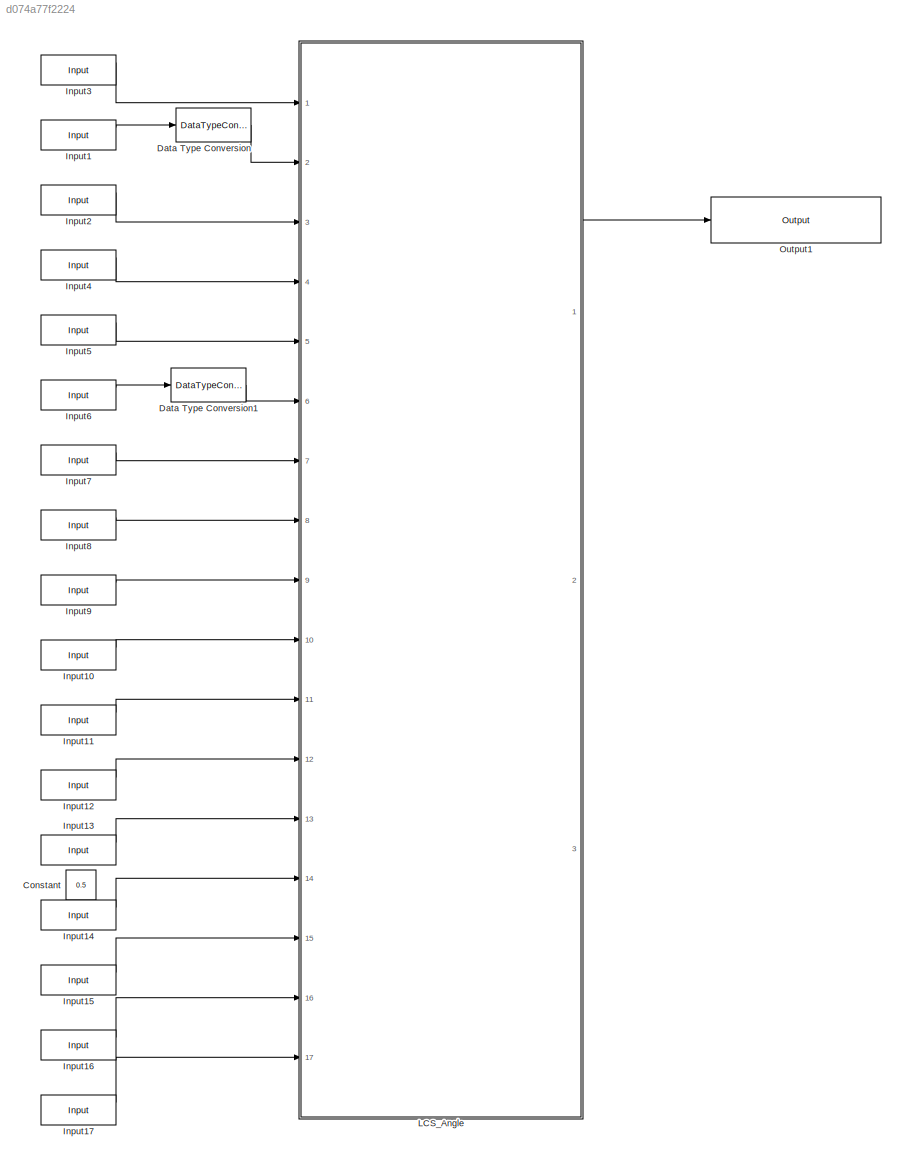
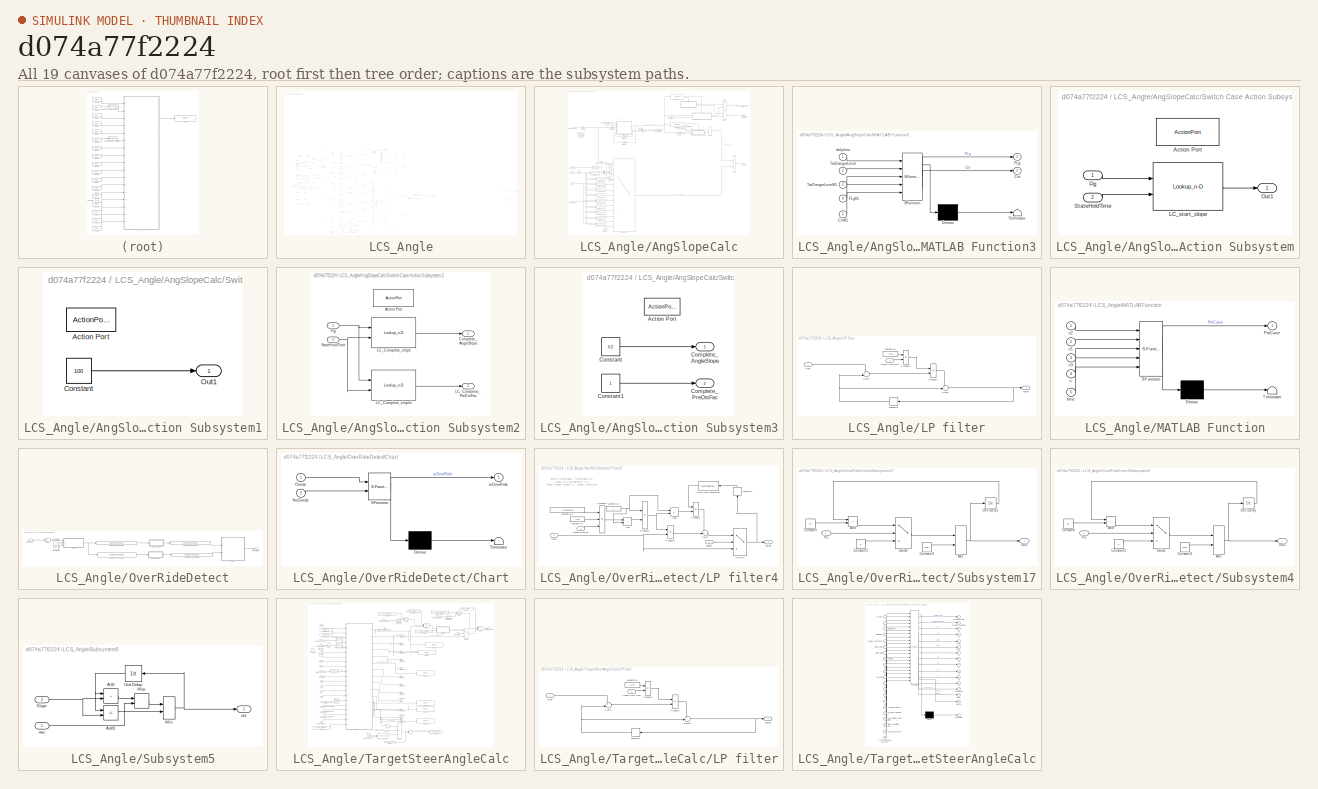
[diagram: thumbnail index - all 19 canvases of the model, root first then tree order]
MODEL slx_d074a77f2224
KIND model
CONFIG AbsTol = auto
CONFIG EnableMultiTasking = off
CONFIG FixedStep = 0.01
CONFIG MaxStep = auto
CONFIG MinStep = auto
CONFIG RelTol = 1e-3
CONFIG SampleTimeConstraint = Unconstrained
CONFIG SolverName = FixedStepDiscrete
CONFIG StartTime = 0.0
CONFIG StopTime = inf
BLOCK [Constant] Constant
  OutDataTypeStr = single
  Value = 0.5
BLOCK [DataTypeConversion] Data Type Conversion
  RndMeth = Floor
  SaturateOnIntegerOverflow = off
BLOCK [DataTypeConversion] Data Type Conversion1
  RndMeth = Floor
  SaturateOnIntegerOverflow = off
BLOCK [Reference] Input1  REF=canapelib/CANape I//O/Input
  AttributesFormatString = %<envName>
  Ports = [0, 3]
  SourceBlock = canapelib/CANape I//O/Input
  SourceProductName = Vector CANape/vSignalyzer Target
  SourceType = Input Module
BLOCK [Reference] Input10  REF=canapelib/CANape I//O/Input
  AttributesFormatString = %<envName>
  Ports = [0, 3]
  SourceBlock = canapelib/CANape I//O/Input
  SourceProductName = Vector CANape/vSignalyzer Target
  SourceType = Input Module
BLOCK [Reference] Input11  REF=canapelib/CANape I//O/Input
  AttributesFormatString = %<envName>
  Ports = [0, 3]
  SourceBlock = canapelib/CANape I//O/Input
  SourceProductName = Vector CANape/vSignalyzer Target
  SourceType = Input Module
BLOCK [Reference] Input12  REF=canapelib/CANape I//O/Input
  AttributesFormatString = %<envName>
  Ports = [0, 3]
  SourceBlock = canapelib/CANape I//O/Input
  SourceProductName = Vector CANape/vSignalyzer Target
  SourceType = Input Module
BLOCK [Reference] Input13  REF=canapelib/CANape I//O/Input
  AttributesFormatString = %<envName>
  Ports = [0, 3]
  SourceBlock = canapelib/CANape I//O/Input
  SourceProductName = Vector CANape/vSignalyzer Target
  SourceType = Input Module
BLOCK [Reference] Input14  REF=canapelib/CANape I//O/Input
  AttributesFormatString = %<envName>
  Ports = [0, 3]
  SourceBlock = canapelib/CANape I//O/Input
  SourceProductName = Vector CANape/vSignalyzer Target
  SourceType = Input Module
BLOCK [Reference] Input15  REF=canapelib/CANape I//O/Input
  AttributesFormatString = %<envName>
  Ports = [0, 3]
  SourceBlock = canapelib/CANape I//O/Input
  SourceProductName = Vector CANape/vSignalyzer Target
  SourceType = Input Module
BLOCK [Reference] Input16  REF=canapelib/CANape I//O/Input
  AttributesFormatString = %<envName>
  Ports = [0, 3]
  SourceBlock = canapelib/CANape I//O/Input
  SourceProductName = Vector CANape/vSignalyzer Target
  SourceType = Input Module
BLOCK [Reference] Input17  REF=canapelib/CANape I//O/Input
  AttributesFormatString = %<envName>
  Ports = [0, 3]
  SourceBlock = canapelib/CANape I//O/Input
  SourceProductName = Vector CANape/vSignalyzer Target
  SourceType = Input Module
BLOCK [Reference] Input2  REF=canapelib/CANape I//O/Input
  AttributesFormatString = %<envName>
  Ports = [0, 3]
  SourceBlock = canapelib/CANape I//O/Input
  SourceProductName = Vector CANape/vSignalyzer Target
  SourceType = Input Module
BLOCK [Reference] Input3  REF=canapelib/CANape I//O/Input
  AttributesFormatString = %<envName>
  Ports = [0, 3]
  SourceBlock = canapelib/CANape I//O/Input
  SourceProductName = Vector CANape/vSignalyzer Target
  SourceType = Input Module
BLOCK [Reference] Input4  REF=canapelib/CANape I//O/Input
  AttributesFormatString = %<envName>
  Ports = [0, 3]
  SourceBlock = canapelib/CANape I//O/Input
  SourceProductName = Vector CANape/vSignalyzer Target
  SourceType = Input Module
BLOCK [Reference] Input5  REF=canapelib/CANape I//O/Input
  AttributesFormatString = %<envName>
  Ports = [0, 3]
  SourceBlock = canapelib/CANape I//O/Input
  SourceProductName = Vector CANape/vSignalyzer Target
  SourceType = Input Module
BLOCK [Reference] Input6  REF=canapelib/CANape I//O/Input
  AttributesFormatString = %<envName>
  Ports = [0, 3]
  SourceBlock = canapelib/CANape I//O/Input
  SourceProductName = Vector CANape/vSignalyzer Target
  SourceType = Input Module
BLOCK [Reference] Input7  REF=canapelib/CANape I//O/Input
  AttributesFormatString = %<envName>
  Ports = [0, 3]
  SourceBlock = canapelib/CANape I//O/Input
  SourceProductName = Vector CANape/vSignalyzer Target
  SourceType = Input Module
BLOCK [Reference] Input8  REF=canapelib/CANape I//O/Input
  AttributesFormatString = %<envName>
  Ports = [0, 3]
  SourceBlock = canapelib/CANape I//O/Input
  SourceProductName = Vector CANape/vSignalyzer Target
  SourceType = Input Module
BLOCK [Reference] Input9  REF=canapelib/CANape I//O/Input
  AttributesFormatString = %<envName>
  Ports = [0, 3]
  SourceBlock = canapelib/CANape I//O/Input
  SourceProductName = Vector CANape/vSignalyzer Target
  SourceType = Input Module
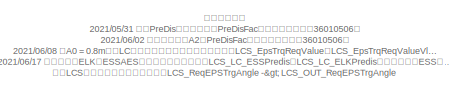
[diagram: LCS_Angle - part 1/9, top left region]
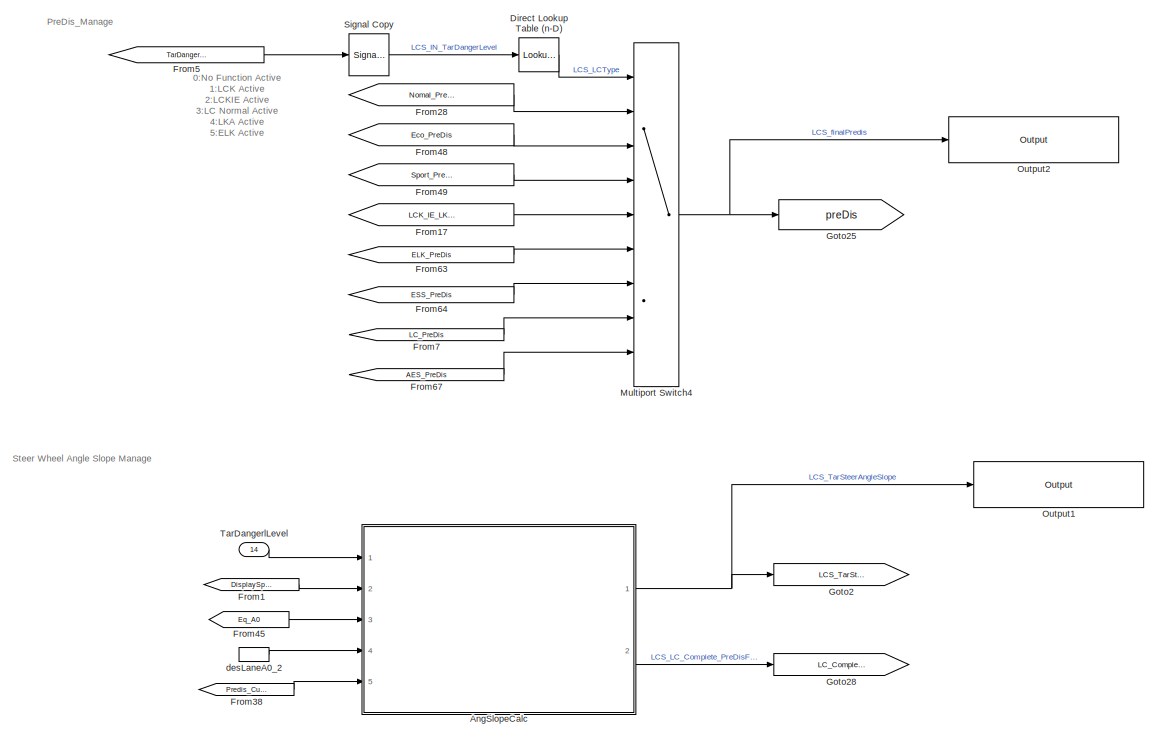
[diagram: LCS_Angle - part 2/9, central region]
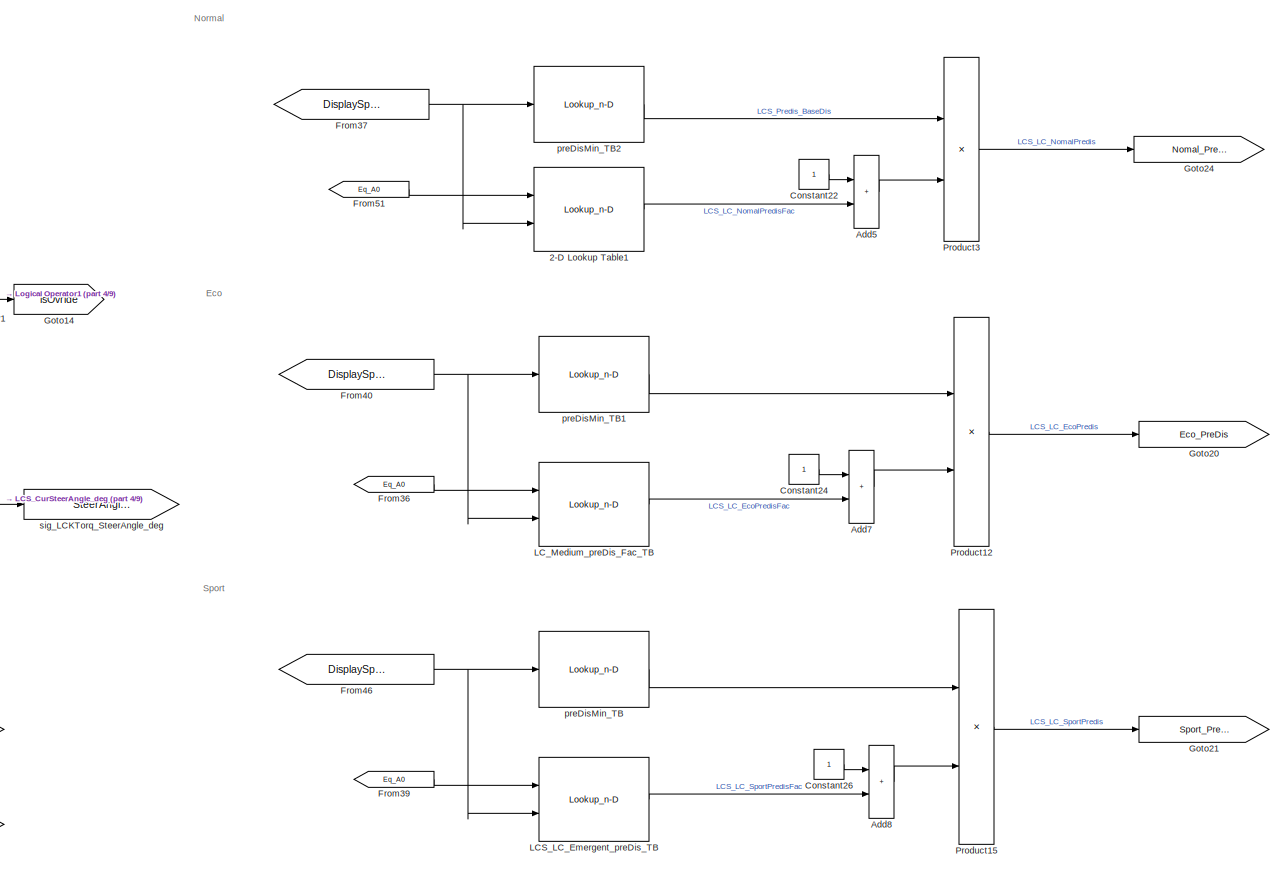
[diagram: LCS_Angle - part 3/9, middle left region]
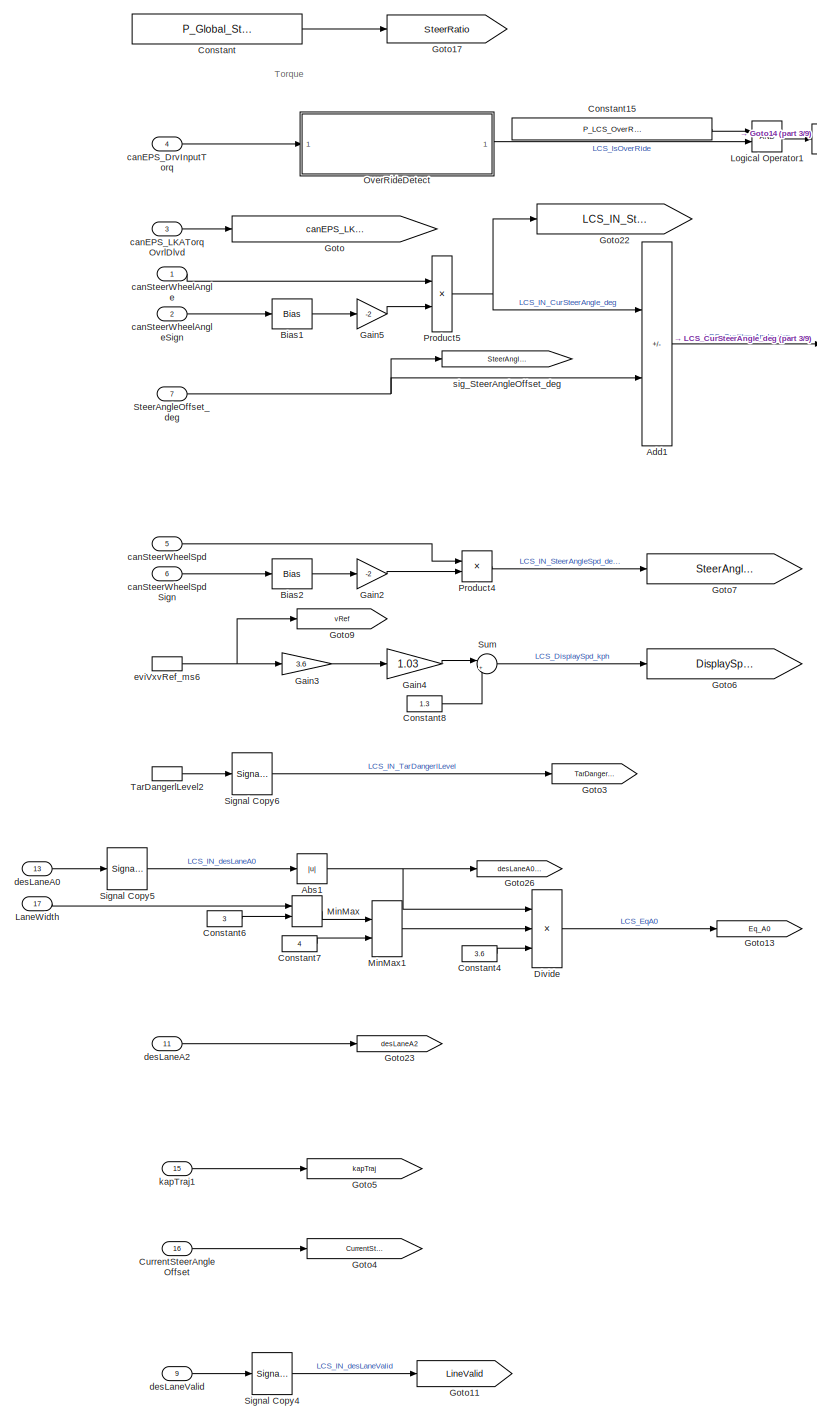
[diagram: LCS_Angle - part 4/9, middle left region]
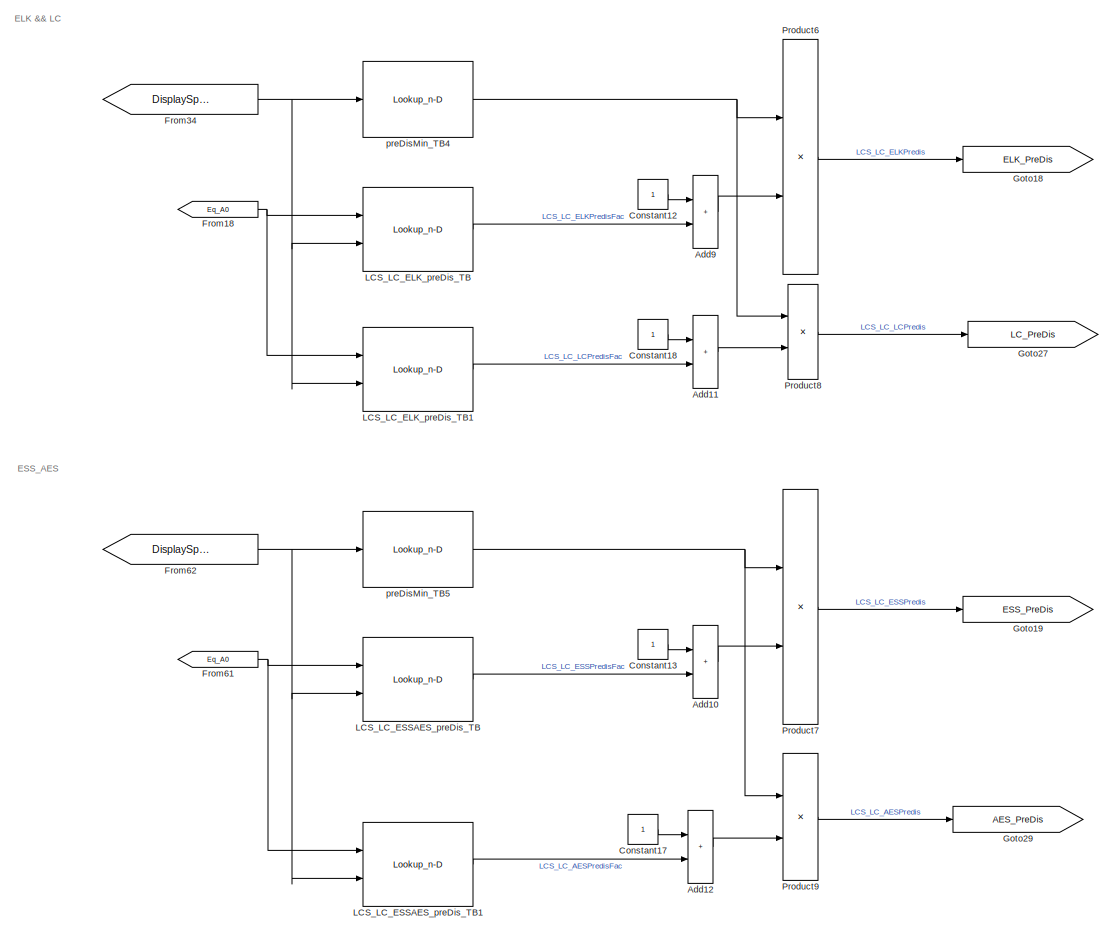
[diagram: LCS_Angle - part 5/9, bottom left region]
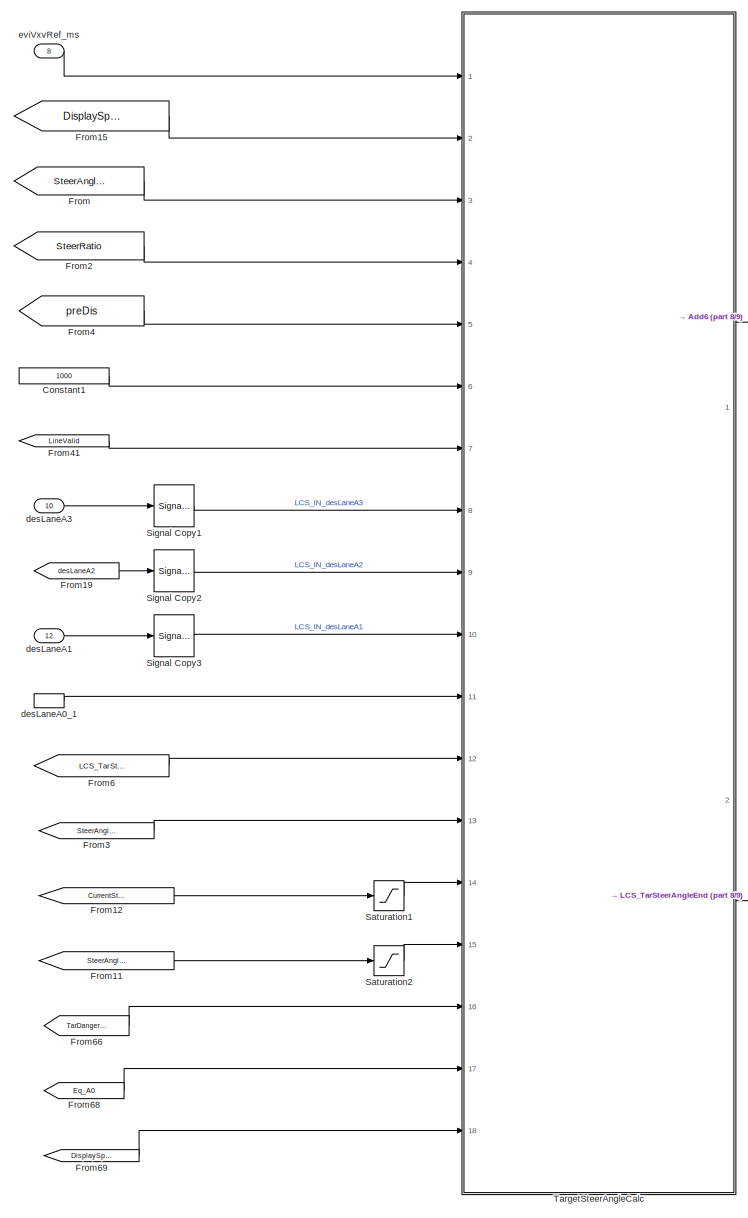
[diagram: LCS_Angle - part 6/9, bottom center region]
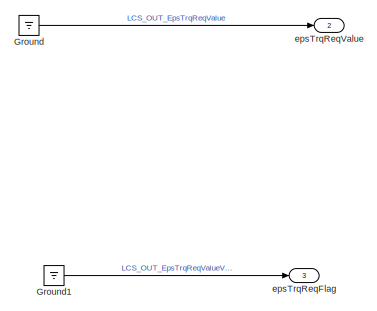
[diagram: LCS_Angle - part 7/9, bottom right region]
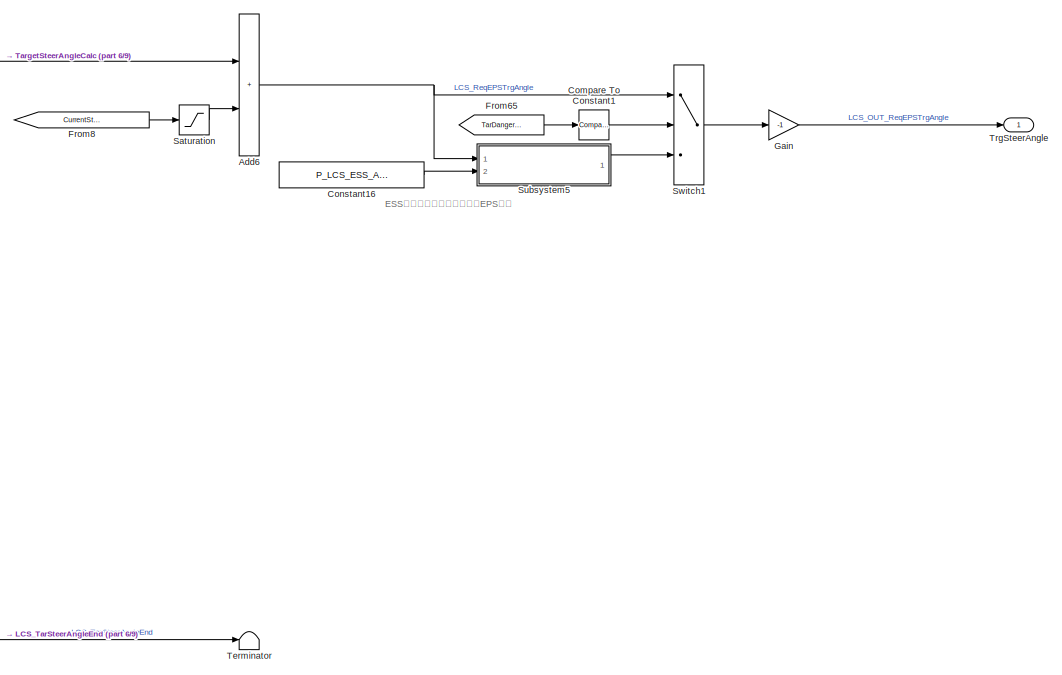
[diagram: LCS_Angle - part 8/9, bottom center region]
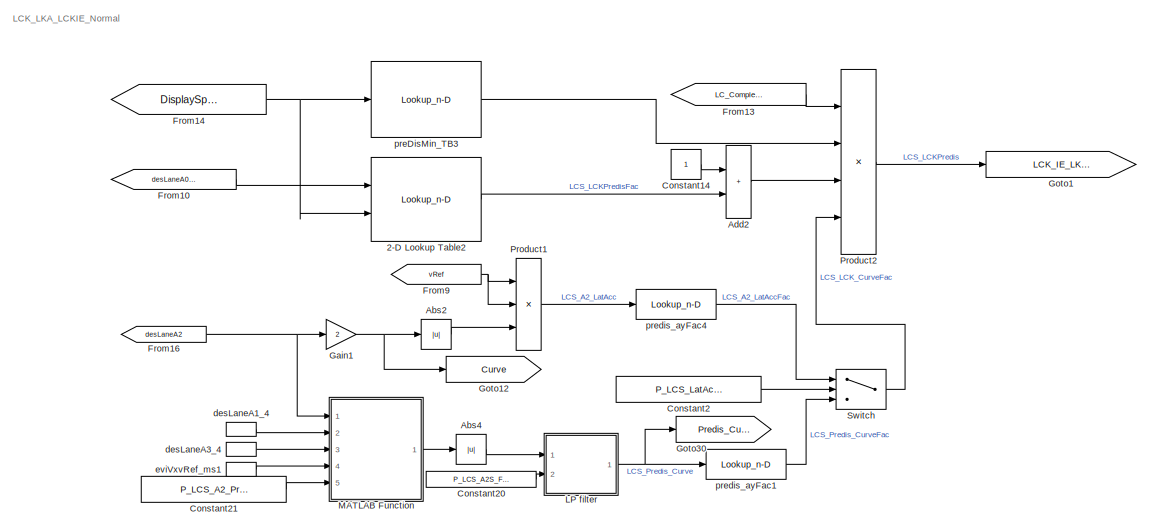
[diagram: LCS_Angle - part 9/9, bottom left region]
BLOCK [SubSystem] LCS_Angle
  Ports = [17, 3]
  RequestExecContextInheritance = off
BLOCK [Lookup_n-D] LCS_Angle/2-D Lookup Table1
  BreakpointsForDimension1 = P_LCS_A0_Dis_BP
  BreakpointsForDimension2 = P_LCS_preDis_spd
  ExtrapMethod = Clip
  InputPortMap = u0,u1
  InternalRulePriority = Speed
  Ports = [2, 1]
  RndMeth = Simplest
  Table = P_LCS_preDis_LC_Nomal_Fac
  UseLastTableValue = on
BLOCK [Lookup_n-D] LCS_Angle/2-D Lookup Table2
  BreakpointsForDimension1 = P_LCS_A0_Dis_BP
  BreakpointsForDimension2 = P_LCS_preDis_spd
  ExtrapMethod = Clip
  InputPortMap = u0,u1
  InternalRulePriority = Speed
  Ports = [2, 1]
  RndMeth = Simplest
  Table = P_LCS_preDis_LCK_Fac
  UseLastTableValue = on
BLOCK [Abs] LCS_Angle/Abs1
  SaturateOnIntegerOverflow = off
BLOCK [Abs] LCS_Angle/Abs2
  SaturateOnIntegerOverflow = off
BLOCK [Abs] LCS_Angle/Abs4
  SaturateOnIntegerOverflow = off
BLOCK [Sum] LCS_Angle/Add1
  IconShape = rectangular
  Inputs = +-
  Ports = [2, 1]
BLOCK [Sum] LCS_Angle/Add10
  IconShape = rectangular
  Ports = [2, 1]
BLOCK [Sum] LCS_Angle/Add11
  IconShape = rectangular
  Ports = [2, 1]
BLOCK [Sum] LCS_Angle/Add12
  IconShape = rectangular
  Ports = [2, 1]
BLOCK [Sum] LCS_Angle/Add2
  IconShape = rectangular
  Ports = [2, 1]
BLOCK [Sum] LCS_Angle/Add5
  IconShape = rectangular
  Ports = [2, 1]
BLOCK [Sum] LCS_Angle/Add6
  AccumDataTypeStr = single
  IconShape = rectangular
  Ports = [2, 1]
BLOCK [Sum] LCS_Angle/Add7
  IconShape = rectangular
  Ports = [2, 1]
BLOCK [Sum] LCS_Angle/Add8
  IconShape = rectangular
  Ports = [2, 1]
BLOCK [Sum] LCS_Angle/Add9
  IconShape = rectangular
  Ports = [2, 1]
BLOCK [SubSystem] LCS_Angle/AngSlopeCalc
  Ports = [5, 2]
  RequestExecContextInheritance = off
BLOCK [Abs] LCS_Angle/AngSlopeCalc/Abs1
  SaturateOnIntegerOverflow = off
BLOCK [Outport] LCS_Angle/AngSlopeCalc/AngSlope
  OutDataTypeStr = single
BLOCK [Constant] LCS_Angle/AngSlopeCalc/Constant
  OutDataTypeStr = single
  Value = 0.4
BLOCK [Constant] LCS_Angle/AngSlopeCalc/Constant2
  OutDataTypeStr = uint16
  Value = P_LCS_StateHold_time
BLOCK [Constant] LCS_Angle/AngSlopeCalc/Constant3
  Value = 0.02
BLOCK [Constant] LCS_Angle/AngSlopeCalc/Constant4
  OutDataTypeStr = single
  Value = 0.4
BLOCK [Lookup_n-D] LCS_Angle/AngSlopeCalc/ELK Active
  BreakpointsForDimension1 = P_LCS_A0_Dis_BP
  BreakpointsForDimension2 = P_LCS_AngleSlope_Spd_BP
  ExtrapMethod = Clip
  InputPortMap = u0,u1
  InputSameDT = off
  InternalRulePriority = Speed
  OutDataTypeStr = single
  Ports = [2, 1]
  RndMeth = Simplest
  Table = P_LCS_AngleSlope_ELK
  UseLastTableValue = on
BLOCK [Lookup_n-D] LCS_Angle/AngSlopeCalc/ESS AES Active
  BreakpointsForDimension1 = P_LCS_A0_Dis_BP
  BreakpointsForDimension2 = P_LCS_AngleSlope_Spd_BP
  ExtrapMethod = Clip
  InputPortMap = u0,u1
  InputSameDT = off
  InternalRulePriority = Speed
  OutDataTypeStr = single
  Ports = [2, 1]
  RndMeth = Simplest
  Table = P_LCS_AngleSlope_ESS
  UseLastTableValue = on
BLOCK [Inport] LCS_Angle/AngSlopeCalc/Eq_A0
  Port = 3
BLOCK [From] LCS_Angle/AngSlopeCalc/From
  GotoTag = LC_Complete_AngleSlope
BLOCK [From] LCS_Angle/AngSlopeCalc/From1
  GotoTag = HoldTime
BLOCK [From] LCS_Angle/AngSlopeCalc/From2
  GotoTag = HoldTime
BLOCK [Goto] LCS_Angle/AngSlopeCalc/Goto
  GotoTag = HoldTime
BLOCK [Goto] LCS_Angle/AngSlopeCalc/Goto1
  GotoTag = LC_Complete_AngleSlope
BLOCK [Lookup_n-D] LCS_Angle/AngSlopeCalc/LC Cancel
  BreakpointsForDimension1 = P_LCS_A0_Dis_BP
  BreakpointsForDimension2 = P_LCS_AngleSlope_Spd_BP
  ExtrapMethod = Clip
  InputPortMap = u0,u1
  InputSameDT = off
  InternalRulePriority = Speed
  OutDataTypeStr = single
  Ports = [2, 1]
  RndMeth = Simplest
  Table = P_LCS_AngleSlope_LC_Cancel
  UseLastTableValue = on
BLOCK [Lookup_n-D] LCS_Angle/AngSlopeCalc/LCK//IE TO LC_Eco
  BreakpointsForDimension1 = P_LCS_A0_Dis_BP
  BreakpointsForDimension2 = P_LCS_AngleSlope_Spd_BP
  ExtrapMethod = Clip
  InputPortMap = u0,u1
  InputSameDT = off
  InternalRulePriority = Speed
  OutDataTypeStr = single
  Ports = [2, 1]
  RndMeth = Simplest
  Table = P_LCS_AngleSlope_LC_Eco
  UseLastTableValue = on
BLOCK [Lookup_n-D] LCS_Angle/AngSlopeCalc/LCK//IE TO LC_Nomal
  BreakpointsForDimension1 = P_LCS_A0_Dis_BP
  BreakpointsForDimension2 = P_LCS_AngleSlope_Spd_BP
  ExtrapMethod = Clip
  InputPortMap = u0,u1
  InputSameDT = off
  InternalRulePriority = Speed
  OutDataTypeStr = single
  Ports = [2, 1]
  RndMeth = Simplest
  Table = P_LCS_AngleSlope_LC_Nomal
  UseLastTableValue = on
BLOCK [Lookup_n-D] LCS_Angle/AngSlopeCalc/LCK//IE TO LC_Sport
  BreakpointsForDimension1 = P_LCS_A0_Dis_BP
  BreakpointsForDimension2 = P_LCS_AngleSlope_Spd_BP
  ExtrapMethod = Clip
  InputPortMap = u0,u1
  InputSameDT = off
  InternalRulePriority = Speed
  OutDataTypeStr = single
  Ports = [2, 1]
  RndMeth = Simplest
  Table = P_LCS_AngleSlope_LC_Sport
  UseLastTableValue = on
BLOCK [Lookup_n-D] LCS_Angle/AngSlopeCalc/LCK//IE TO LC_Sport1
  BreakpointsForDimension1 = P_LCS_A0_Dis_BP
  BreakpointsForDimension2 = P_LCS_AngleSlope_Spd_BP
  ExtrapMethod = Clip
  InputPortMap = u0,u1
  InputSameDT = off
  InternalRulePriority = Speed
  OutDataTypeStr = single
  Ports = [2, 1]
  RndMeth = Simplest
  Table = P_LCS_AngleSlope_AES_Active
  UseLastTableValue = on
BLOCK [Lookup_n-D] LCS_Angle/AngSlopeCalc/LCKIE_Active
  BreakpointsForDimension1 = P_LCS_A0_Dis_BP
  BreakpointsForDimension2 = P_LCS_AngleSlope_Spd_BP
  ExtrapMethod = Clip
  InputPortMap = u0,u1
  InputSameDT = off
  InternalRulePriority = Speed
  OutDataTypeStr = single
  Ports = [2, 1]
  RndMeth = Simplest
  Table = P_LCS_AngleSlope_LCKIE
  UseLastTableValue = on
BLOCK [Lookup_n-D] LCS_Angle/AngSlopeCalc/LCK_A2_Fac
  BreakpointsForDimension1 = P_LCS_A2_Curve_BP
  ExtrapMethod = Clip
  InputPortMap = u0
  InternalRulePriority = Speed
  NumberOfTableDimensions = 1
  Ports = [1, 1]
  RndMeth = Simplest
  Table = P_LCS_AngleSlope_LCK_Curve_Fac
  UseLastTableValue = on
BLOCK [Outport] LCS_Angle/AngSlopeCalc/LC_Complete_PreDisFac
  OutDataTypeStr = single
  Port = 2
BLOCK [Lookup_n-D] LCS_Angle/AngSlopeCalc/LKA Active
  BreakpointsForDimension1 = P_LCS_A0_Dis_BP
  BreakpointsForDimension2 = P_LCS_AngleSlope_Spd_BP
  ExtrapMethod = Clip
  InputPortMap = u0,u1
  InputSameDT = off
  InternalRulePriority = Speed
  OutDataTypeStr = single
  Ports = [2, 1]
  RndMeth = Simplest
  Table = P_LCS_AngleSlope_LKA
  UseLastTableValue = on
BLOCK [SubSystem] LCS_Angle/AngSlopeCalc/MATLAB Function3
  ErrorFcn = Stateflow.Translate.translate
  PermitHierarchicalResolution = ExplicitOnly
  Ports = [5, 2]
  RequestExecContextInheritance = off
  SFBlockType = MATLAB Function
  TreatAsAtomicUnit = on
BLOCK [Demux] LCS_Angle/AngSlopeCalc/MATLAB Function3/ Demux 
  Outputs = 1
  Ports = [1, 1]
BLOCK [S-Function] LCS_Angle/AngSlopeCalc/MATLAB Function3/ SFunction 
  EnableBusSupport = on
  FunctionName = sf_sfun
  PortCounts = [5 3]
  Ports = [5, 3]
  SFcnIsStateOwnerBlock = off
  SFunctionDeploymentMode = off
  Tag = Stateflow S-Function 2
BLOCK [Terminator] LCS_Angle/AngSlopeCalc/MATLAB Function3/ Terminator 
BLOCK [Outport] LCS_Angle/AngSlopeCalc/MATLAB Function3/Cnt
  Port = 2
BLOCK [Inport] LCS_Angle/AngSlopeCalc/MATLAB Function3/CntK1
  Port = 5
BLOCK [Outport] LCS_Angle/AngSlopeCalc/MATLAB Function3/FLg
BLOCK [Inport] LCS_Angle/AngSlopeCalc/MATLAB Function3/FLgK1
  Port = 4
BLOCK [Inport] LCS_Angle/AngSlopeCalc/MATLAB Function3/TarDangerLevel
  Port = 2
BLOCK [Inport] LCS_Angle/AngSlopeCalc/MATLAB Function3/TarDangerLevelK1
  Port = 3
BLOCK [Inport] LCS_Angle/AngSlopeCalc/MATLAB Function3/delytime
BLOCK [MinMax] LCS_Angle/AngSlopeCalc/Max
  Function = max
  Inputs = 2
  Ports = [2, 1]
BLOCK [MinMax] LCS_Angle/AngSlopeCalc/Max1
  Function = max
  Inputs = 2
  Ports = [2, 1]
BLOCK [Merge] LCS_Angle/AngSlopeCalc/Merge
  Ports = [2, 1]
BLOCK [Merge] LCS_Angle/AngSlopeCalc/Merge1
  Ports = [2, 1]
BLOCK [Merge] LCS_Angle/AngSlopeCalc/Merge2
  Ports = [2, 1]
BLOCK [MinMax] LCS_Angle/AngSlopeCalc/Min
  Inputs = 2
  Ports = [2, 1]
BLOCK [MultiPortSwitch] LCS_Angle/AngSlopeCalc/Multiport Switch1
  DataPortOrder = Zero-based contiguous
  InputSameDT = off
  Inputs = 12
  Ports = [13, 1]
  SaturateOnIntegerOverflow = off
  zeroidx = on
BLOCK [Lookup_n-D] LCS_Angle/AngSlopeCalc/No Function 2 LCK
  BreakpointsForDimension1 = P_LCS_A0_Dis_BP
  BreakpointsForDimension2 = P_LCS_AngleSlope_Spd_BP
  ExtrapMethod = Clip
  InputPortMap = u0,u1
  InputSameDT = off
  InternalRulePriority = Speed
  OutDataTypeStr = single
  Ports = [2, 1]
  RndMeth = Simplest
  Table = P_LCS_AngleSlope_LCK
  UseLastTableValue = on
BLOCK [Inport] LCS_Angle/AngSlopeCalc/Predis_Curve
  Port = 5
BLOCK [Product] LCS_Angle/AngSlopeCalc/Product
  Ports = [2, 1]
BLOCK [Product] LCS_Angle/AngSlopeCalc/Product1
  Ports = [2, 1]
BLOCK [SwitchCase] LCS_Angle/AngSlopeCalc/Switch Case
  CaseConditions = {[1,2,3,4,5,6]}
  Ports = [1, 2]
BLOCK [SubSystem] LCS_Angle/AngSlopeCalc/Switch Case Action Subsystem
  Ports = [2, 1, 0, 0, 0, 0, 0, 1]
  RequestExecContextInheritance = off
  TreatAsAtomicUnit = on
BLOCK [ActionPort] LCS_Angle/AngSlopeCalc/Switch Case Action Subsystem/Action Port
  ActionPortLabel = case [ 1 2 3 4 5 6 ]:
BLOCK [Inport] LCS_Angle/AngSlopeCalc/Switch Case Action Subsystem/Flg
BLOCK [Lookup_n-D] LCS_Angle/AngSlopeCalc/Switch Case Action Subsystem/LC_start_slope
  BreakpointsForDimension1 = P_LCS_StateActiveFlg_BP
  BreakpointsForDimension2 = P_LCS_StateActive_HoldTime_BP
  ExtrapMethod = Clip
  InputPortMap = u0,u1
  InputSameDT = off
  InternalRulePriority = Speed
  OutDataTypeStr = single
  Ports = [2, 1]
  RndMeth = Simplest
  Table = P_LCS_StateActiv_AngleSlope
  UseLastTableValue = on
BLOCK [Outport] LCS_Angle/AngSlopeCalc/Switch Case Action Subsystem/Out1
BLOCK [Inport] LCS_Angle/AngSlopeCalc/Switch Case Action Subsystem/StateHoldTime
  Port = 2
BLOCK [SubSystem] LCS_Angle/AngSlopeCalc/Switch Case Action Subsystem1
  Ports = [0, 1, 0, 0, 0, 0, 0, 1]
  RequestExecContextInheritance = off
  TreatAsAtomicUnit = on
BLOCK [ActionPort] LCS_Angle/AngSlopeCalc/Switch Case Action Subsystem1/Action Port
  ActionPortLabel = default:
BLOCK [Constant] LCS_Angle/AngSlopeCalc/Switch Case Action Subsystem1/Constant
  OutDataTypeStr = single
  Value = 100
BLOCK [Outport] LCS_Angle/AngSlopeCalc/Switch Case Action Subsystem1/Out1
BLOCK [SubSystem] LCS_Angle/AngSlopeCalc/Switch Case Action Subsystem2
  Ports = [2, 2, 0, 0, 0, 0, 0, 1]
  RequestExecContextInheritance = off
  TreatAsAtomicUnit = on
BLOCK [ActionPort] LCS_Angle/AngSlopeCalc/Switch Case Action Subsystem2/Action Port
  ActionPortLabel = case [ 7 8 9 10 ]:
BLOCK [Outport] LCS_Angle/AngSlopeCalc/Switch Case Action Subsystem2/Complete_AngleSlope
BLOCK [Inport] LCS_Angle/AngSlopeCalc/Switch Case Action Subsystem2/Flg
BLOCK [Outport] LCS_Angle/AngSlopeCalc/Switch Case Action Subsystem2/LC_Complete_PreDisFac
  Port = 2
BLOCK [Lookup_n-D] LCS_Angle/AngSlopeCalc/Switch Case Action Subsystem2/LC_Complete_slope
  BreakpointsForDimension1 = P_LCS_StateCompleteFlg_BP
  BreakpointsForDimension2 = P_LCS_StateActive_HoldTime_BP
  ExtrapMethod = Clip
  InputPortMap = u0,u1
  InputSameDT = off
  InternalRulePriority = Speed
  OutDataTypeStr = single
  Ports = [2, 1]
  RndMeth = Simplest
  Table = P_LCS_StateComplete_AngleSlope
  UseLastTableValue = on
BLOCK [Lookup_n-D] LCS_Angle/AngSlopeCalc/Switch Case Action Subsystem2/LC_Complete_slope1
  BreakpointsForDimension1 = P_LCS_StateCompleteFlg_BP
  BreakpointsForDimension2 = P_LCS_StateActive_HoldTime_BP
  ExtrapMethod = Clip
  InputPortMap = u0,u1
  InputSameDT = off
  InternalRulePriority = Speed
  OutDataTypeStr = single
  Ports = [2, 1]
  RndMeth = Simplest
  Table = P_LCS_LC_Complete_PreDisFac
  UseLastTableValue = on
BLOCK [Inport] LCS_Angle/AngSlopeCalc/Switch Case Action Subsystem2/StateHoldTime
  Port = 2
BLOCK [SubSystem] LCS_Angle/AngSlopeCalc/Switch Case Action Subsystem3
  Ports = [0, 2, 0, 0, 0, 0, 0, 1]
  RequestExecContextInheritance = off
  TreatAsAtomicUnit = on
BLOCK [ActionPort] LCS_Angle/AngSlopeCalc/Switch Case Action Subsystem3/Action Port
  ActionPortLabel = default:
BLOCK [Outport] LCS_Angle/AngSlopeCalc/Switch Case Action Subsystem3/Complete_AngleSlope
BLOCK [Outport] LCS_Angle/AngSlopeCalc/Switch Case Action Subsystem3/Complete_PreDisFac
  Port = 2
BLOCK [Constant] LCS_Angle/AngSlopeCalc/Switch Case Action Subsystem3/Constant
  OutDataTypeStr = single
  Value = 0.2
BLOCK [Constant] LCS_Angle/AngSlopeCalc/Switch Case Action Subsystem3/Constant1
  OutDataTypeStr = single
BLOCK [SwitchCase] LCS_Angle/AngSlopeCalc/Switch Case1
  CaseConditions = {[7,8,9,10]}
  Ports = [1, 2]
BLOCK [Inport] LCS_Angle/AngSlopeCalc/TarDangerlLevel
BLOCK [UnitDelay] LCS_Angle/AngSlopeCalc/Unit Delay3
  HasFrameUpgradeWarning = on
  NameLocation = top
  SampleTime = -1
BLOCK [UnitDelay] LCS_Angle/AngSlopeCalc/Unit Delay4
  HasFrameUpgradeWarning = on
  NameLocation = top
  SampleTime = -1
BLOCK [UnitDelay] LCS_Angle/AngSlopeCalc/Unit Delay5
  HasFrameUpgradeWarning = on
  SampleTime = -1
BLOCK [UnitDelay] LCS_Angle/AngSlopeCalc/Unit Delay9
  HasFrameUpgradeWarning = on
  SampleTime = -1
BLOCK [Inport] LCS_Angle/AngSlopeCalc/desLane_A0
  Port = 4
BLOCK [Inport] LCS_Angle/AngSlopeCalc/vDisplay_Kph
  Port = 2
BLOCK [Bias] LCS_Angle/Bias1
  Bias = -0.5
  SaturateOnIntegerOverflow = off
BLOCK [Bias] LCS_Angle/Bias2
  Bias = -0.5
  SaturateOnIntegerOverflow = off
BLOCK [Reference] LCS_Angle/Compare To Constant1  REF=simulink/Logic and Bit
Operations/Compare
To Constant
  Ports = [1, 1]
  SourceBlock = simulink/Logic and Bit\nOperations/Compare\nTo Constant
  SourceProductBaseCode = SL
  SourceType = Compare To Constant
BLOCK [Constant] LCS_Angle/Constant
  OutDataTypeStr = double
  Value = P_Global_SteeringAngleRatio
BLOCK [Constant] LCS_Angle/Constant1
  OutDataTypeStr = single
  Value = 1000
BLOCK [Constant] LCS_Angle/Constant12
  OutDataTypeStr = single
BLOCK [Constant] LCS_Angle/Constant13
  OutDataTypeStr = single
BLOCK [Constant] LCS_Angle/Constant14
  OutDataTypeStr = single
BLOCK [Constant] LCS_Angle/Constant15
  Value = P_LCS_OverRideDetect_enable
BLOCK [Constant] LCS_Angle/Constant16
  OutDataTypeStr = single
  Value = P_LCS_ESS_AngleSlope_Limit
BLOCK [Constant] LCS_Angle/Constant17
  OutDataTypeStr = single
BLOCK [Constant] LCS_Angle/Constant18
  OutDataTypeStr = single
BLOCK [Constant] LCS_Angle/Constant2
  Value = P_LCS_LatAcc2CurveSW
BLOCK [Constant] LCS_Angle/Constant20
  Value = P_LCS_A2S_FliterTime
BLOCK [Constant] LCS_Angle/Constant21
  OutDataTypeStr = single
  Value = P_LCS_A2_Pretime
BLOCK [Constant] LCS_Angle/Constant22
  OutDataTypeStr = single
BLOCK [Constant] LCS_Angle/Constant24
  OutDataTypeStr = single
BLOCK [Constant] LCS_Angle/Constant26
  OutDataTypeStr = single
BLOCK [Constant] LCS_Angle/Constant4
  OutDataTypeStr = single
  Value = 3.6
BLOCK [Constant] LCS_Angle/Constant6
  OutDataTypeStr = single
  Value = 3
BLOCK [Constant] LCS_Angle/Constant7
  OutDataTypeStr = single
  Value = 4
BLOCK [Constant] LCS_Angle/Constant8
  OutDataTypeStr = single
  Value = 1.3
BLOCK [Inport] LCS_Angle/CurrentSteerAngleOffset
  Port = 16
BLOCK [LookupNDDirect] LCS_Angle/Direct Lookup Table (n-D)
  NumberOfTableDimensions = 1
  Ports = [1, 1]
  Table = [4 4 4 1 4 5 6 2 3 7 8]
  TableDataTypeStr = uint8
BLOCK [Product] LCS_Angle/Divide
  Inputs = **/
  Ports = [3, 1]
BLOCK [From] LCS_Angle/From
  GotoTag = SteerAngle_deg
BLOCK [From] LCS_Angle/From1
  GotoTag = DisplaySpd_kph
BLOCK [From] LCS_Angle/From10
  GotoTag = desLaneA0_abs
BLOCK [From] LCS_Angle/From11
  GotoTag = SteerAngleOffset_deg
BLOCK [From] LCS_Angle/From12
  GotoTag = CurrentSteerAngleOffset
BLOCK [From] LCS_Angle/From13
  GotoTag = LC_Complete_PreDisFac
BLOCK [From] LCS_Angle/From14
  GotoTag = DisplaySpd_kph
BLOCK [From] LCS_Angle/From15
  GotoTag = DisplaySpd_kph
BLOCK [From] LCS_Angle/From16
  GotoTag = desLaneA2
BLOCK [From] LCS_Angle/From17
  GotoTag = LCK_IE_LKA_Nomal_PreDis
BLOCK [From] LCS_Angle/From18
  GotoTag = Eq_A0
BLOCK [From] LCS_Angle/From19
  GotoTag = desLaneA2
BLOCK [From] LCS_Angle/From2
  GotoTag = SteerRatio
BLOCK [From] LCS_Angle/From28
  GotoTag = Nomal_PreDis
BLOCK [From] LCS_Angle/From3
  GotoTag = SteerAngleSpd_degs
BLOCK [From] LCS_Angle/From34
  GotoTag = DisplaySpd_kph
BLOCK [From] LCS_Angle/From36
  GotoTag = Eq_A0
BLOCK [From] LCS_Angle/From37
  GotoTag = DisplaySpd_kph
BLOCK [From] LCS_Angle/From38
  GotoTag = Predis_Curve
BLOCK [From] LCS_Angle/From39
  GotoTag = Eq_A0
BLOCK [From] LCS_Angle/From4
  GotoTag = preDis
BLOCK [From] LCS_Angle/From40
  GotoTag = DisplaySpd_kph
BLOCK [From] LCS_Angle/From41
  GotoTag = LineValid
BLOCK [From] LCS_Angle/From45
  GotoTag = Eq_A0
BLOCK [From] LCS_Angle/From46
  GotoTag = DisplaySpd_kph
BLOCK [From] LCS_Angle/From48
  GotoTag = Eco_PreDis
BLOCK [From] LCS_Angle/From49
  GotoTag = Sport_PreDis
BLOCK [From] LCS_Angle/From5
  GotoTag = TarDangerlLevel
BLOCK [From] LCS_Angle/From51
  GotoTag = Eq_A0
BLOCK [From] LCS_Angle/From6
  GotoTag = LCS_TarSteerAngleSlope
BLOCK [From] LCS_Angle/From61
  GotoTag = Eq_A0
BLOCK [From] LCS_Angle/From62
  GotoTag = DisplaySpd_kph
BLOCK [From] LCS_Angle/From63
  GotoTag = ELK_PreDis
BLOCK [From] LCS_Angle/From64
  GotoTag = ESS_PreDis
BLOCK [From] LCS_Angle/From65
  GotoTag = TarDangerlLevel
BLOCK [From] LCS_Angle/From66
  GotoTag = TarDangerlLevel
BLOCK [From] LCS_Angle/From67
  GotoTag = AES_PreDis
BLOCK [From] LCS_Angle/From68
  GotoTag = Eq_A0
BLOCK [From] LCS_Angle/From69
  GotoTag = DisplaySpd_kph
BLOCK [From] LCS_Angle/From7
  GotoTag = LC_PreDis
BLOCK [From] LCS_Angle/From8
  GotoTag = CurrentSteerAngleOffset
BLOCK [From] LCS_Angle/From9
  GotoTag = vRef
BLOCK [Gain] LCS_Angle/Gain
  Gain = -1
BLOCK [Gain] LCS_Angle/Gain1
  Gain = 2
BLOCK [Gain] LCS_Angle/Gain2
  Gain = -2
  OutDataTypeStr = single
BLOCK [Gain] LCS_Angle/Gain3
  Gain = 3.6
BLOCK [Gain] LCS_Angle/Gain4
  Gain = 1.03
BLOCK [Gain] LCS_Angle/Gain5
  Gain = -2
  OutDataTypeStr = single
BLOCK [Goto] LCS_Angle/Goto
  GotoTag = canEPS_LKATorqOvrlDlvd
BLOCK [Goto] LCS_Angle/Goto1
  GotoTag = LCK_IE_LKA_Nomal_PreDis
BLOCK [Goto] LCS_Angle/Goto11
  GotoTag = LineValid
BLOCK [Goto] LCS_Angle/Goto12
  GotoTag = Curve
BLOCK [Goto] LCS_Angle/Goto13
  GotoTag = Eq_A0
BLOCK [Goto] LCS_Angle/Goto14
  GotoTag = isOvride
BLOCK [Goto] LCS_Angle/Goto17
  GotoTag = SteerRatio
BLOCK [Goto] LCS_Angle/Goto18
  GotoTag = ELK_PreDis
BLOCK [Goto] LCS_Angle/Goto19
  GotoTag = ESS_PreDis
BLOCK [Goto] LCS_Angle/Goto2
  GotoTag = LCS_TarSteerAngleSlope
BLOCK [Goto] LCS_Angle/Goto20
  GotoTag = Eco_PreDis
BLOCK [Goto] LCS_Angle/Goto21
  GotoTag = Sport_PreDis
BLOCK [Goto] LCS_Angle/Goto22
  GotoTag = LCS_IN_SteerAngle_deg
BLOCK [Goto] LCS_Angle/Goto23
  GotoTag = desLaneA2
BLOCK [Goto] LCS_Angle/Goto24
  GotoTag = Nomal_PreDis
BLOCK [Goto] LCS_Angle/Goto25
  GotoTag = preDis
BLOCK [Goto] LCS_Angle/Goto26
  GotoTag = desLaneA0_abs
BLOCK [Goto] LCS_Angle/Goto27
  GotoTag = LC_PreDis
BLOCK [Goto] LCS_Angle/Goto28
  GotoTag = LC_Complete_PreDisFac
BLOCK [Goto] LCS_Angle/Goto29
  GotoTag = AES_PreDis
BLOCK [Goto] LCS_Angle/Goto3
  GotoTag = TarDangerlLevel
BLOCK [Goto] LCS_Angle/Goto30
  GotoTag = Predis_Curve
BLOCK [Goto] LCS_Angle/Goto4
  GotoTag = CurrentSteerAngleOffset
BLOCK [Goto] LCS_Angle/Goto5
  GotoTag = kapTraj
BLOCK [Goto] LCS_Angle/Goto6
  GotoTag = DisplaySpd_kph
BLOCK [Goto] LCS_Angle/Goto7
  GotoTag = SteerAngleSpd_degs
BLOCK [Goto] LCS_Angle/Goto9
  GotoTag = vRef
BLOCK [Ground] LCS_Angle/Ground
BLOCK [Ground] LCS_Angle/Ground1
BLOCK [Lookup_n-D] LCS_Angle/LCS_LC_ELK_preDis_TB
  BreakpointsForDimension1 = P_LCS_A0_Dis_BP
  BreakpointsForDimension2 = P_LCS_preDis_spd
  ExtrapMethod = Clip
  InputPortMap = u0,u1
  InternalRulePriority = Speed
  Ports = [2, 1]
  RndMeth = Simplest
  Table = P_LCS_preDis_ELK_Fac
  UseLastTableValue = on
BLOCK [Lookup_n-D] LCS_Angle/LCS_LC_ELK_preDis_TB1
  BreakpointsForDimension1 = P_LCS_A0_Dis_BP
  BreakpointsForDimension2 = P_LCS_preDis_spd
  ExtrapMethod = Clip
  InputPortMap = u0,u1
  InternalRulePriority = Speed
  Ports = [2, 1]
  RndMeth = Simplest
  Table = P_LCS_preDis_LC_Fac
  UseLastTableValue = on
BLOCK [Lookup_n-D] LCS_Angle/LCS_LC_ESSAES_preDis_TB
  BreakpointsForDimension1 = P_LCS_A0_Dis_BP
  BreakpointsForDimension2 = P_LCS_preDis_spd
  ExtrapMethod = Clip
  InputPortMap = u0,u1
  InternalRulePriority = Speed
  Ports = [2, 1]
  RndMeth = Simplest
  Table = P_LCS_preDis_ESS_Fac
  UseLastTableValue = on
BLOCK [Lookup_n-D] LCS_Angle/LCS_LC_ESSAES_preDis_TB1
  BreakpointsForDimension1 = P_LCS_A0_Dis_BP
  BreakpointsForDimension2 = P_LCS_preDis_spd
  ExtrapMethod = Clip
  InputPortMap = u0,u1
  InternalRulePriority = Speed
  Ports = [2, 1]
  RndMeth = Simplest
  Table = P_LCS_preDis_AES_Fac
  UseLastTableValue = on
BLOCK [Lookup_n-D] LCS_Angle/LCS_LC_Emergent_preDis_TB
  BreakpointsForDimension1 = P_LCS_A0_Dis_BP
  BreakpointsForDimension2 = P_LCS_preDis_spd
  ExtrapMethod = Clip
  InputPortMap = u0,u1
  InternalRulePriority = Speed
  Ports = [2, 1]
  RndMeth = Simplest
  Table = P_LCS_preDis_LC_Sport_Fac
  UseLastTableValue = on
BLOCK [Lookup_n-D] LCS_Angle/LC_Medium_preDis_Fac_TB
  BreakpointsForDimension1 = P_LCS_A0_Dis_BP
  BreakpointsForDimension2 = P_LCS_preDis_spd
  ExtrapMethod = Clip
  InputPortMap = u0,u1
  InternalRulePriority = Speed
  Ports = [2, 1]
  RndMeth = Simplest
  Table = P_LCS_preDis_LC_Eco_Fac
  UseLastTableValue = on
BLOCK [SubSystem] LCS_Angle/LP filter
  Ports = [2, 1]
  RequestExecContextInheritance = off
BLOCK [Memory] LCS_Angle/LP filter/Memory2
  InheritSampleTime = on
  NameLocation = top
BLOCK [Product] LCS_Angle/LP filter/Product1
  Ports = [2, 1]
  RndMeth = Zero
BLOCK [Product] LCS_Angle/LP filter/Product4
  Inputs = */
  Ports = [2, 1]
  RndMeth = Zero
BLOCK [Inport] LCS_Angle/LP filter/Raw
BLOCK [Sum] LCS_Angle/LP filter/Sum4
  Inputs = +-|
  Ports = [2, 1]
BLOCK [Sum] LCS_Angle/LP filter/Sum5
  Inputs = ++|
  Ports = [2, 1]
BLOCK [Inport] LCS_Angle/LP filter/TorqFilterTime
  Port = 2
BLOCK [Constant] LCS_Angle/LP filter/Weight//N3
  OutDataTypeStr = single
  Value = 0.02
BLOCK [Outport] LCS_Angle/LP filter/output
BLOCK [Inport] LCS_Angle/LaneWidth
  Port = 17
BLOCK [Logic] LCS_Angle/Logical Operator1
  AllPortsSameDT = off
  OutDataTypeStr = boolean
  Ports = [2, 1]
BLOCK [SubSystem] LCS_Angle/MATLAB Function
  ErrorFcn = Stateflow.Translate.translate
  PermitHierarchicalResolution = ExplicitOnly
  Ports = [5, 1]
  RequestExecContextInheritance = off
  SFBlockType = MATLAB Function
  TreatAsAtomicUnit = on
BLOCK [Demux] LCS_Angle/MATLAB Function/ Demux 
  Outputs = 1
  Ports = [1, 1]
BLOCK [S-Function] LCS_Angle/MATLAB Function/ SFunction 
  EnableBusSupport = on
  FunctionName = sf_sfun
  PortCounts = [5 2]
  Ports = [5, 2]
  SFcnIsStateOwnerBlock = off
  SFunctionDeploymentMode = off
  Tag = Stateflow S-Function 3
BLOCK [Terminator] LCS_Angle/MATLAB Function/ Terminator 
BLOCK [Outport] LCS_Angle/MATLAB Function/PreCurve
BLOCK [Inport] LCS_Angle/MATLAB Function/c1
  Port = 2
BLOCK [Inport] LCS_Angle/MATLAB Function/c2
BLOCK [Inport] LCS_Angle/MATLAB Function/c3
  Port = 3
BLOCK [Inport] LCS_Angle/MATLAB Function/time
  Port = 5
BLOCK [Inport] LCS_Angle/MATLAB Function/v
  Port = 4
BLOCK [MinMax] LCS_Angle/MinMax
  Function = max
  Inputs = 2
  Ports = [2, 1]
BLOCK [MinMax] LCS_Angle/MinMax1
  Inputs = 2
  Ports = [2, 1]
BLOCK [MultiPortSwitch] LCS_Angle/Multiport Switch4
  InputSameDT = off
  Inputs = 8
  Ports = [9, 1]
  SaturateOnIntegerOverflow = off
BLOCK [Reference] LCS_Angle/Output1  REF=canapelib/CANape I//O/Output
  AttributesFormatString = %<envName>
  Ports = [1]
  SourceBlock = canapelib/CANape I//O/Output
  SourceProductName = Vector CANape/vSignalyzer Target
  SourceType = Output Module
BLOCK [Reference] LCS_Angle/Output2  REF=canapelib/CANape I//O/Output
  AttributesFormatString = %<envName>
  Ports = [1]
  SourceBlock = canapelib/CANape I//O/Output
  SourceProductName = Vector CANape/vSignalyzer Target
  SourceType = Output Module
BLOCK [SubSystem] LCS_Angle/OverRideDetect
  Ports = [1, 1]
  RequestExecContextInheritance = off
BLOCK [Abs] LCS_Angle/OverRideDetect/Abs4
  SaturateOnIntegerOverflow = off
BLOCK [SubSystem] LCS_Angle/OverRideDetect/Chart
  ErrorFcn = Stateflow.Translate.translate
  PermitHierarchicalResolution = ExplicitOnly
  Ports = [2, 1]
  RequestExecContextInheritance = off
  SFBlockType = Chart
  TreatAsAtomicUnit = on
BLOCK [Demux] LCS_Angle/OverRideDetect/Chart/ Demux 
  Outputs = 1
  Ports = [1, 1]
BLOCK [S-Function] LCS_Angle/OverRideDetect/Chart/ SFunction 
  EnableBusSupport = on
  FunctionName = sf_sfun
  PortCounts = [2 2]
  Ports = [2, 2]
  SFcnIsStateOwnerBlock = off
  SFunctionDeploymentMode = off
  Tag = Stateflow S-Function 4
BLOCK [Terminator] LCS_Angle/OverRideDetect/Chart/ Terminator 
BLOCK [Inport] LCS_Angle/OverRideDetect/Chart/NoOvride
  Port = 2
BLOCK [Inport] LCS_Angle/OverRideDetect/Chart/Ovride
BLOCK [Outport] LCS_Angle/OverRideDetect/Chart/isOverRide
BLOCK [Reference] LCS_Angle/OverRideDetect/Compare To Constant1  REF=simulink/Logic and Bit
Operations/Compare
To Constant
  Ports = [1, 1]
  SourceBlock = simulink/Logic and Bit\nOperations/Compare\nTo Constant
  SourceProductBaseCode = SL
  SourceType = Compare To Constant
BLOCK [Reference] LCS_Angle/OverRideDetect/Compare To Constant2  REF=simulink/Logic and Bit
Operations/Compare
To Constant
  Ports = [1, 1]
  SourceBlock = simulink/Logic and Bit\nOperations/Compare\nTo Constant
  SourceProductBaseCode = SL
  SourceType = Compare To Constant
BLOCK [Reference] LCS_Angle/OverRideDetect/Compare To Constant3  REF=simulink/Logic and Bit
Operations/Compare
To Constant
  Ports = [1, 1]
  SourceBlock = simulink/Logic and Bit\nOperations/Compare\nTo Constant
  SourceProductBaseCode = SL
  SourceType = Compare To Constant
BLOCK [Reference] LCS_Angle/OverRideDetect/Compare To Constant4  REF=simulink/Logic and Bit
Operations/Compare
To Constant
  Ports = [1, 1]
  SourceBlock = simulink/Logic and Bit\nOperations/Compare\nTo Constant
  SourceProductBaseCode = SL
  SourceType = Compare To Constant
BLOCK [Constant] LCS_Angle/OverRideDetect/Constant12
  Value = 0.8
BLOCK [Constant] LCS_Angle/OverRideDetect/Constant13
  Value = true
BLOCK [Inport] LCS_Angle/OverRideDetect/DrvTrqInput
BLOCK [SubSystem] LCS_Angle/OverRideDetect/LP filter4
  Ports = [3, 1]
  RequestExecContextInheritance = off
BLOCK [Sum] LCS_Angle/OverRideDetect/LP filter4/Add
  IconShape = rectangular
  Ports = [2, 1]
BLOCK [Sum] LCS_Angle/OverRideDetect/LP filter4/Add1
  IconShape = rectangular
  Inputs = +-
  Ports = [2, 1]
BLOCK [DataTypeConversion] LCS_Angle/OverRideDetect/LP filter4/Data Type Conversion
  OutDataTypeStr = single
  RndMeth = Floor
  SaturateOnIntegerOverflow = off
BLOCK [Memory] LCS_Angle/OverRideDetect/LP filter4/Memory2
  InheritSampleTime = on
  NameLocation = right
BLOCK [Product] LCS_Angle/OverRideDetect/LP filter4/Product2
  Inputs = */
  Ports = [2, 1]
  RndMeth = Zero
BLOCK [Product] LCS_Angle/OverRideDetect/LP filter4/Product3
  Ports = [2, 1]
  RndMeth = Zero
BLOCK [Product] LCS_Angle/OverRideDetect/LP filter4/Product4
  Inputs = *//
  Ports = [3, 1]
  RndMeth = Zero
BLOCK [Product] LCS_Angle/OverRideDetect/LP filter4/Product5
  Ports = [2, 1]
  RndMeth = Zero
BLOCK [Inport] LCS_Angle/OverRideDetect/LP filter4/Raw
BLOCK [Sum] LCS_Angle/OverRideDetect/LP filter4/Sum1
  Inputs = ++|
  Ports = [2, 1]
BLOCK [Switch] LCS_Angle/OverRideDetect/LP filter4/Switch1
  Criteria = u2 ~= 0
  InputSameDT = off
  SaturateOnIntegerOverflow = off
BLOCK [Inport] LCS_Angle/OverRideDetect/LP filter4/TorqFilterTime
  Port = 2
BLOCK [Constant] LCS_Angle/OverRideDetect/LP filter4/Weight//N1
  OutDataTypeStr = single
  Value = 0.1591549431
BLOCK [Constant] LCS_Angle/OverRideDetect/LP filter4/Weight//N2
  OutDataTypeStr = single
BLOCK [Constant] LCS_Angle/OverRideDetect/LP filter4/Weight//N3
  OutDataTypeStr = single
  Value = 0.02
BLOCK [Inport] LCS_Angle/OverRideDetect/LP filter4/enable
  Port = 3
BLOCK [Outport] LCS_Angle/OverRideDetect/LP filter4/output
BLOCK [SubSystem] LCS_Angle/OverRideDetect/Subsystem17
  Ports = [1, 1]
  RequestExecContextInheritance = off
BLOCK [Sum] LCS_Angle/OverRideDetect/Subsystem17/Add
  IconShape = rectangular
  Ports = [2, 1]
BLOCK [Constant] LCS_Angle/OverRideDetect/Subsystem17/Constant
  Value = Ts
BLOCK [Constant] LCS_Angle/OverRideDetect/Subsystem17/Constant1
  Value = 0
BLOCK [Constant] LCS_Angle/OverRideDetect/Subsystem17/Constant2
  Value = Max
BLOCK [Inport] LCS_Angle/OverRideDetect/Subsystem17/In1
BLOCK [MinMax] LCS_Angle/OverRideDetect/Subsystem17/Max
  Inputs = 2
  Ports = [2, 1]
BLOCK [Outport] LCS_Angle/OverRideDetect/Subsystem17/Out1
BLOCK [Switch] LCS_Angle/OverRideDetect/Subsystem17/Switch
  Criteria = u2 ~= 0
  InputSameDT = off
  SaturateOnIntegerOverflow = off
BLOCK [UnitDelay] LCS_Angle/OverRideDetect/Subsystem17/Unit Delay
  HasFrameUpgradeWarning = on
  SampleTime = -1
BLOCK [SubSystem] LCS_Angle/OverRideDetect/Subsystem4
  Ports = [1, 1]
  RequestExecContextInheritance = off
BLOCK [Sum] LCS_Angle/OverRideDetect/Subsystem4/Add
  IconShape = rectangular
  Ports = [2, 1]
BLOCK [Constant] LCS_Angle/OverRideDetect/Subsystem4/Constant
  Value = Ts
BLOCK [Constant] LCS_Angle/OverRideDetect/Subsystem4/Constant1
  Value = 0
BLOCK [Constant] LCS_Angle/OverRideDetect/Subsystem4/Constant2
  Value = Max
BLOCK [Inport] LCS_Angle/OverRideDetect/Subsystem4/In1
BLOCK [MinMax] LCS_Angle/OverRideDetect/Subsystem4/Max
  Inputs = 2
  Ports = [2, 1]
BLOCK [Outport] LCS_Angle/OverRideDetect/Subsystem4/Out1
BLOCK [Switch] LCS_Angle/OverRideDetect/Subsystem4/Switch
  Criteria = u2 ~= 0
  InputSameDT = off
  SaturateOnIntegerOverflow = off
BLOCK [UnitDelay] LCS_Angle/OverRideDetect/Subsystem4/Unit Delay
  HasFrameUpgradeWarning = on
  SampleTime = -1
BLOCK [Outport] LCS_Angle/OverRideDetect/isOverRide
BLOCK [Product] LCS_Angle/Product1
  Inputs = 3
  Ports = [3, 1]
BLOCK [Product] LCS_Angle/Product12
  Ports = [2, 1]
BLOCK [Product] LCS_Angle/Product15
  Ports = [2, 1]
BLOCK [Product] LCS_Angle/Product2
  Inputs = 4
  Ports = [4, 1]
BLOCK [Product] LCS_Angle/Product3
  Ports = [2, 1]
BLOCK [Product] LCS_Angle/Product4
  Ports = [2, 1]
BLOCK [Product] LCS_Angle/Product5
  Ports = [2, 1]
BLOCK [Product] LCS_Angle/Product6
  Ports = [2, 1]
BLOCK [Product] LCS_Angle/Product7
  Ports = [2, 1]
BLOCK [Product] LCS_Angle/Product8
  Ports = [2, 1]
BLOCK [Product] LCS_Angle/Product9
  Ports = [2, 1]
BLOCK [Saturate] LCS_Angle/Saturation
  LowerLimit = -10
  UpperLimit = 10
BLOCK [Saturate] LCS_Angle/Saturation1
  LowerLimit = -10
  UpperLimit = 10
BLOCK [Saturate] LCS_Angle/Saturation2
  LowerLimit = -10
  UpperLimit = 10
BLOCK [SignalConversion] LCS_Angle/Signal Copy
  OverrideOpt = off
BLOCK [SignalConversion] LCS_Angle/Signal Copy1
  OverrideOpt = off
BLOCK [SignalConversion] LCS_Angle/Signal Copy2
  OverrideOpt = off
BLOCK [SignalConversion] LCS_Angle/Signal Copy3
  OverrideOpt = off
BLOCK [SignalConversion] LCS_Angle/Signal Copy4
  OverrideOpt = off
BLOCK [SignalConversion] LCS_Angle/Signal Copy5
  OverrideOpt = off
BLOCK [SignalConversion] LCS_Angle/Signal Copy6
  OverrideOpt = off
BLOCK [Inport] LCS_Angle/SteerAngleOffset_deg
  Port = 7
BLOCK [SubSystem] LCS_Angle/Subsystem5
  Ports = [2, 1]
  RequestExecContextInheritance = off
BLOCK [Sum] LCS_Angle/Subsystem5/Add
  IconShape = rectangular
  Ports = [2, 1]
BLOCK [Sum] LCS_Angle/Subsystem5/Add1
  IconShape = rectangular
  Inputs = +-
  Ports = [2, 1]
BLOCK [MinMax] LCS_Angle/Subsystem5/Max
  Inputs = 2
  Ports = [2, 1]
BLOCK [MinMax] LCS_Angle/Subsystem5/Min
  Function = max
  Inputs = 2
  Ports = [2, 1]
BLOCK [Inport] LCS_Angle/Subsystem5/Slope
  Port = 2
BLOCK [UnitDelay] LCS_Angle/Subsystem5/Unit Delay
  HasFrameUpgradeWarning = on
  InitialCondition = single(0)
  SampleTime = -1
BLOCK [Outport] LCS_Angle/Subsystem5/out
BLOCK [Inport] LCS_Angle/Subsystem5/raw
BLOCK [Sum] LCS_Angle/Sum
  Inputs = |++
  Ports = [2, 1]
BLOCK [Switch] LCS_Angle/Switch
  Criteria = u2 ~= 0
  InputSameDT = off
  SaturateOnIntegerOverflow = off
BLOCK [Switch] LCS_Angle/Switch1
  Criteria = u2 > Threshold
  InputSameDT = off
  SaturateOnIntegerOverflow = off
BLOCK [Inport] LCS_Angle/TarDangerlLevel
  Port = 14
BLOCK [InportShadow] LCS_Angle/TarDangerlLevel2
  Port = 14
BLOCK [SubSystem] LCS_Angle/TargetSteerAngleCalc
  Ports = [18, 2]
  RequestExecContextInheritance = off
BLOCK [Inport] LCS_Angle/TargetSteerAngleCalc/A0
  Port = 11
BLOCK [Inport] LCS_Angle/TargetSteerAngleCalc/A1
  Port = 10
BLOCK [Inport] LCS_Angle/TargetSteerAngleCalc/A2
  Port = 9
BLOCK [Inport] LCS_Angle/TargetSteerAngleCalc/A3
  Port = 8
BLOCK [Logic] LCS_Angle/TargetSteerAngleCalc/AND
  AllPortsSameDT = off
  OutDataTypeStr = boolean
  Ports = [2, 1]
BLOCK [Logic] LCS_Angle/TargetSteerAngleCalc/AND1
  AllPortsSameDT = off
  OutDataTypeStr = boolean
  Ports = [2, 1]
BLOCK [Abs] LCS_Angle/TargetSteerAngleCalc/Abs
  SaturateOnIntegerOverflow = off
BLOCK [Sum] LCS_Angle/TargetSteerAngleCalc/Add
  IconShape = rectangular
  Ports = [2, 1]
BLOCK [Reference] LCS_Angle/TargetSteerAngleCalc/Compare To Constant  REF=simulink/Logic and Bit
Operations/Compare
To Constant
  Ports = [1, 1]
  SourceBlock = simulink/Logic and Bit\nOperations/Compare\nTo Constant
  SourceProductBaseCode = SL
  SourceType = Compare To Constant
BLOCK [Reference] LCS_Angle/TargetSteerAngleCalc/Compare To Constant1  REF=simulink/Logic and Bit
Operations/Compare
To Constant
  Ports = [1, 1]
  SourceBlock = simulink/Logic and Bit\nOperations/Compare\nTo Constant
  SourceProductBaseCode = SL
  SourceType = Compare To Constant
BLOCK [Constant] LCS_Angle/TargetSteerAngleCalc/Constant
  Value = P_LCS_AngleFilterTime
BLOCK [Constant] LCS_Angle/TargetSteerAngleCalc/Constant2
  Value = P_LCS_ESSAngSlope_SW
BLOCK [Constant] LCS_Angle/TargetSteerAngleCalc/Constant3
  OutDataTypeStr = boolean
  Value = P_LCS_ESSAngleSW
BLOCK [Constant] LCS_Angle/TargetSteerAngleCalc/Constant4
  Value = P_LCS_ESSAngleSW2
BLOCK [Constant] LCS_Angle/TargetSteerAngleCalc/Constant5
  Commented = on
  OutDataTypeStr = single
  Value = 5
BLOCK [Inport] LCS_Angle/TargetSteerAngleCalc/CurrentSteerAngleOffset
  Port = 14
BLOCK [Inport] LCS_Angle/TargetSteerAngleCalc/DisplaySpd_Kph
  Port = 2
BLOCK [InportShadow] LCS_Angle/TargetSteerAngleCalc/DisplaySpd_Kph1
  Port = 2
BLOCK [Inport] LCS_Angle/TargetSteerAngleCalc/DisplaySpd_kph
  Port = 18
BLOCK [Lookup_n-D] LCS_Angle/TargetSteerAngleCalc/ESS AES Active
  BreakpointsForDimension1 = P_LCS_A0_Dis_BP
  BreakpointsForDimension2 = P_LCS_AngleSlope_Spd_BP
  ExtrapMethod = Clip
  InputPortMap = u0,u1
  InputSameDT = off
  InternalRulePriority = Speed
  OutDataTypeStr = single
  Ports = [2, 1]
  RndMeth = Simplest
  Table = P_LCS_AngleSlope_ESS_Add
  UseLastTableValue = on
BLOCK [Inport] LCS_Angle/TargetSteerAngleCalc/Eq_A0
  Port = 17
BLOCK [From] LCS_Angle/TargetSteerAngleCalc/From
  GotoTag = TarSteerAngle
BLOCK [From] LCS_Angle/TargetSteerAngleCalc/From1
  GotoTag = TarSteerAngle
BLOCK [From] LCS_Angle/TargetSteerAngleCalc/From2
  GotoTag = ESS_TarAngle
BLOCK [From] LCS_Angle/TargetSteerAngleCalc/From3
  GotoTag = ESS_TarAngle
BLOCK [Goto] LCS_Angle/TargetSteerAngleCalc/Goto
  GotoTag = TarSteerAngle
BLOCK [Goto] LCS_Angle/TargetSteerAngleCalc/Goto1
  GotoTag = ESS_TarAngle
BLOCK [Outport] LCS_Angle/TargetSteerAngleCalc/LCS_TarSteerAngleEnd
  Port = 2
BLOCK [SubSystem] LCS_Angle/TargetSteerAngleCalc/LP filter
  Ports = [2, 1]
  RequestExecContextInheritance = off
BLOCK [Memory] LCS_Angle/TargetSteerAngleCalc/LP filter/Memory2
  InheritSampleTime = on
  NameLocation = top
BLOCK [Product] LCS_Angle/TargetSteerAngleCalc/LP filter/Product1
  Ports = [2, 1]
  RndMeth = Zero
BLOCK [Product] LCS_Angle/TargetSteerAngleCalc/LP filter/Product4
  Inputs = */
  Ports = [2, 1]
  RndMeth = Zero
BLOCK [Inport] LCS_Angle/TargetSteerAngleCalc/LP filter/Raw
BLOCK [Sum] LCS_Angle/TargetSteerAngleCalc/LP filter/Sum4
  Inputs = +-|
  Ports = [2, 1]
BLOCK [Sum] LCS_Angle/TargetSteerAngleCalc/LP filter/Sum5
  Inputs = ++|
  Ports = [2, 1]
BLOCK [Inport] LCS_Angle/TargetSteerAngleCalc/LP filter/TorqFilterTime
  Port = 2
BLOCK [Constant] LCS_Angle/TargetSteerAngleCalc/LP filter/Weight//N3
  OutDataTypeStr = single
  Value = 0.02
BLOCK [Outport] LCS_Angle/TargetSteerAngleCalc/LP filter/output
BLOCK [Inport] LCS_Angle/TargetSteerAngleCalc/LineValid
  Port = 7
BLOCK [InportShadow] LCS_Angle/TargetSteerAngleCalc/LineValid1
  Port = 7
BLOCK [Reference] LCS_Angle/TargetSteerAngleCalc/Output1  REF=canapelib/CANape I//O/Output
  AttributesFormatString = %<envName>
  Ports = [1]
  SourceBlock = canapelib/CANape I//O/Output
  SourceProductName = Vector CANape/vSignalyzer Target
  SourceType = Output Module
BLOCK [Reference] LCS_Angle/TargetSteerAngleCalc/Output2  REF=canapelib/CANape I//O/Output
  AttributesFormatString = %<envName>
  Ports = [1]
  SourceBlock = canapelib/CANape I//O/Output
  SourceProductName = Vector CANape/vSignalyzer Target
  SourceType = Output Module
BLOCK [Reference] LCS_Angle/TargetSteerAngleCalc/Output3  REF=canapelib/CANape I//O/Output
  AttributesFormatString = %<envName>
  Ports = [1]
  SourceBlock = canapelib/CANape I//O/Output
  SourceProductName = Vector CANape/vSignalyzer Target
  SourceType = Output Module
BLOCK [Reference] LCS_Angle/TargetSteerAngleCalc/Output4  REF=canapelib/CANape I//O/Output
  AttributesFormatString = %<envName>
  Ports = [1]
  SourceBlock = canapelib/CANape I//O/Output
  SourceProductName = Vector CANape/vSignalyzer Target
  SourceType = Output Module
BLOCK [Reference] LCS_Angle/TargetSteerAngleCalc/Output5  REF=canapelib/CANape I//O/Output
  AttributesFormatString = %<envName>
  Ports = [1]
  SourceBlock = canapelib/CANape I//O/Output
  SourceProductName = Vector CANape/vSignalyzer Target
  SourceType = Output Module
BLOCK [Reference] LCS_Angle/TargetSteerAngleCalc/Output6  REF=canapelib/CANape I//O/Output
  AttributesFormatString = %<envName>
  Ports = [1]
  SourceBlock = canapelib/CANape I//O/Output
  SourceProductName = Vector CANape/vSignalyzer Target
  SourceType = Output Module
BLOCK [Product] LCS_Angle/TargetSteerAngleCalc/Product
  Inputs = 3
  OutDataTypeStr = single
  Ports = [3, 1]
BLOCK [Lookup_n-D] LCS_Angle/TargetSteerAngleCalc/Q1
  BreakpointsForDimension1 = [0,5,10,15,20,25,30,35,40,60,80,90,100,110,120,140]
  InputPortMap = u0
  InternalRulePriority = Speed
  NumberOfTableDimensions = 1
  Ports = [1, 1]
  RndMeth = Simplest
  Table = [0,0,0,0,0,0,0,0,0,0,0,0,0,0,0,0]
BLOCK [Inport] LCS_Angle/TargetSteerAngleCalc/R1
  Port = 6
BLOCK [Signum] LCS_Angle/TargetSteerAngleCalc/Sign
BLOCK [Inport] LCS_Angle/TargetSteerAngleCalc/SteerAngle
  Port = 3
BLOCK [Inport] LCS_Angle/TargetSteerAngleCalc/SteerAngleOffset_deg
  Port = 15
BLOCK [Inport] LCS_Angle/TargetSteerAngleCalc/SteerAngleSpd
  Port = 13
BLOCK [Inport] LCS_Angle/TargetSteerAngleCalc/SteerRatio
  Port = 4
BLOCK [Switch] LCS_Angle/TargetSteerAngleCalc/Switch
  Criteria = u2 ~= 0
  InputSameDT = off
  SaturateOnIntegerOverflow = off
BLOCK [Switch] LCS_Angle/TargetSteerAngleCalc/Switch1
  Criteria = u2 ~= 0
  InputSameDT = off
  SaturateOnIntegerOverflow = off
BLOCK [Switch] LCS_Angle/TargetSteerAngleCalc/Switch2
  Criteria = u2 ~= 0
  InputSameDT = off
  SaturateOnIntegerOverflow = off
BLOCK [Inport] LCS_Angle/TargetSteerAngleCalc/TarDangerlLevel
  Port = 16
BLOCK [InportShadow] LCS_Angle/TargetSteerAngleCalc/TarDangerlLevel1
  Port = 16
BLOCK [InportShadow] LCS_Angle/TargetSteerAngleCalc/TarDangerlLevel2
  Port = 16
BLOCK [Outport] LCS_Angle/TargetSteerAngleCalc/TarSteerAngle
BLOCK [Inport] LCS_Angle/TargetSteerAngleCalc/TarSteerAngleSlope 
  Port = 12
BLOCK [InportShadow] LCS_Angle/TargetSteerAngleCalc/TarSteerAngleSlope 1
  Port = 12
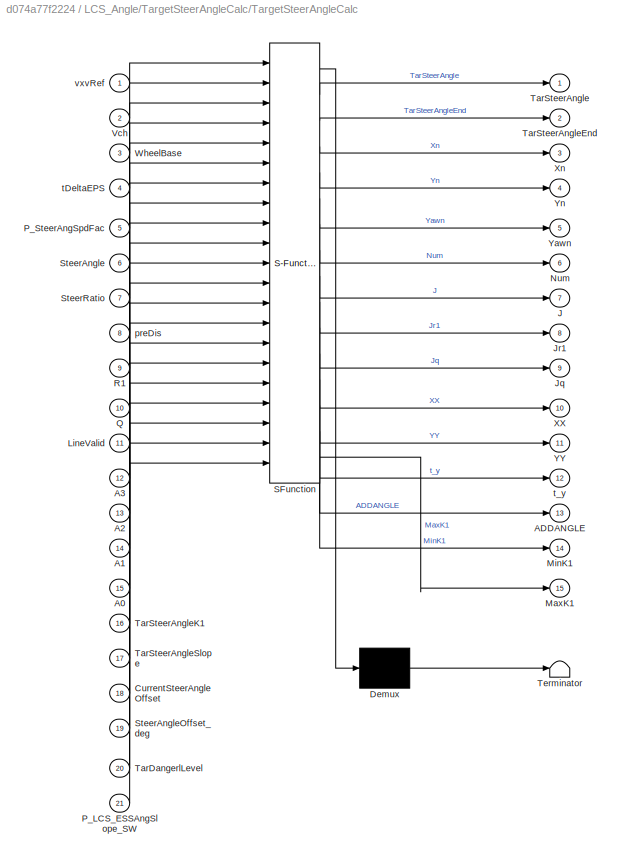
BLOCK [SubSystem] LCS_Angle/TargetSteerAngleCalc/TargetSteerAngleCalc
  ErrorFcn = Stateflow.Translate.translate
  PermitHierarchicalResolution = ExplicitOnly
  Ports = [21, 15]
  RequestExecContextInheritance = off
  SFBlockType = MATLAB Function
  TreatAsAtomicUnit = on
BLOCK [Demux] LCS_Angle/TargetSteerAngleCalc/TargetSteerAngleCalc/ Demux 
  Outputs = 1
  Ports = [1, 1]
BLOCK [S-Function] LCS_Angle/TargetSteerAngleCalc/TargetSteerAngleCalc/ SFunction 
  EnableBusSupport = on
  FunctionName = sf_sfun
  PortCounts = [21 16]
  Ports = [21, 16]
  SFcnIsStateOwnerBlock = off
  SFunctionDeploymentMode = off
  Tag = Stateflow S-Function 32
BLOCK [Terminator] LCS_Angle/TargetSteerAngleCalc/TargetSteerAngleCalc/ Terminator 
BLOCK [Inport] LCS_Angle/TargetSteerAngleCalc/TargetSteerAngleCalc/A0
  Port = 15
BLOCK [Inport] LCS_Angle/TargetSteerAngleCalc/TargetSteerAngleCalc/A1
  Port = 14
BLOCK [Inport] LCS_Angle/TargetSteerAngleCalc/TargetSteerAngleCalc/A2
  Port = 13
BLOCK [Inport] LCS_Angle/TargetSteerAngleCalc/TargetSteerAngleCalc/A3
  Port = 12
BLOCK [Outport] LCS_Angle/TargetSteerAngleCalc/TargetSteerAngleCalc/ADDANGLE
  Port = 13
BLOCK [Inport] LCS_Angle/TargetSteerAngleCalc/TargetSteerAngleCalc/CurrentSteerAngleOffset
  Port = 18
BLOCK [Outport] LCS_Angle/TargetSteerAngleCalc/TargetSteerAngleCalc/J
  Port = 7
BLOCK [Outport] LCS_Angle/TargetSteerAngleCalc/TargetSteerAngleCalc/Jq
  Port = 9
BLOCK [Outport] LCS_Angle/TargetSteerAngleCalc/TargetSteerAngleCalc/Jr1
  Port = 8
BLOCK [Inport] LCS_Angle/TargetSteerAngleCalc/TargetSteerAngleCalc/LineValid
  Port = 11
BLOCK [Outport] LCS_Angle/TargetSteerAngleCalc/TargetSteerAngleCalc/MaxK1
  Port = 15
BLOCK [Outport] LCS_Angle/TargetSteerAngleCalc/TargetSteerAngleCalc/MinK1
  Port = 14
BLOCK [Outport] LCS_Angle/TargetSteerAngleCalc/TargetSteerAngleCalc/Num
  Port = 6
BLOCK [Inport] LCS_Angle/TargetSteerAngleCalc/TargetSteerAngleCalc/P_LCS_ESSAngSlope_SW
  Port = 21
BLOCK [Inport] LCS_Angle/TargetSteerAngleCalc/TargetSteerAngleCalc/P_SteerAngSpdFac
  Port = 5
BLOCK [Inport] LCS_Angle/TargetSteerAngleCalc/TargetSteerAngleCalc/Q
  Port = 10
BLOCK [Inport] LCS_Angle/TargetSteerAngleCalc/TargetSteerAngleCalc/R1
  Port = 9
BLOCK [Inport] LCS_Angle/TargetSteerAngleCalc/TargetSteerAngleCalc/SteerAngle
  Port = 6
BLOCK [Inport] LCS_Angle/TargetSteerAngleCalc/TargetSteerAngleCalc/SteerAngleOffset_deg
  Port = 19
BLOCK [Inport] LCS_Angle/TargetSteerAngleCalc/TargetSteerAngleCalc/SteerRatio
  Port = 7
BLOCK [Inport] LCS_Angle/TargetSteerAngleCalc/TargetSteerAngleCalc/TarDangerlLevel
  Port = 20
BLOCK [Outport] LCS_Angle/TargetSteerAngleCalc/TargetSteerAngleCalc/TarSteerAngle
BLOCK [Outport] LCS_Angle/TargetSteerAngleCalc/TargetSteerAngleCalc/TarSteerAngleEnd
  Port = 2
BLOCK [Inport] LCS_Angle/TargetSteerAngleCalc/TargetSteerAngleCalc/TarSteerAngleK1
  Port = 16
BLOCK [Inport] LCS_Angle/TargetSteerAngleCalc/TargetSteerAngleCalc/TarSteerAngleSlope
  Port = 17
BLOCK [Inport] LCS_Angle/TargetSteerAngleCalc/TargetSteerAngleCalc/Vch
  Port = 2
BLOCK [Inport] LCS_Angle/TargetSteerAngleCalc/TargetSteerAngleCalc/WheelBase
  Port = 3
BLOCK [Outport] LCS_Angle/TargetSteerAngleCalc/TargetSteerAngleCalc/XX
  Port = 10
BLOCK [Outport] LCS_Angle/TargetSteerAngleCalc/TargetSteerAngleCalc/Xn
  Port = 3
BLOCK [Outport] LCS_Angle/TargetSteerAngleCalc/TargetSteerAngleCalc/YY
  Port = 11
BLOCK [Outport] LCS_Angle/TargetSteerAngleCalc/TargetSteerAngleCalc/Yawn
  Port = 5
BLOCK [Outport] LCS_Angle/TargetSteerAngleCalc/TargetSteerAngleCalc/Yn
  Port = 4
BLOCK [Inport] LCS_Angle/TargetSteerAngleCalc/TargetSteerAngleCalc/preDis
  Port = 8
BLOCK [Inport] LCS_Angle/TargetSteerAngleCalc/TargetSteerAngleCalc/tDeltaEPS
  Port = 4
BLOCK [Outport] LCS_Angle/TargetSteerAngleCalc/TargetSteerAngleCalc/t_y
  Port = 12
BLOCK [Inport] LCS_Angle/TargetSteerAngleCalc/TargetSteerAngleCalc/vxvRef
BLOCK [Terminator] LCS_Angle/TargetSteerAngleCalc/Terminator
BLOCK [Terminator] LCS_Angle/TargetSteerAngleCalc/Terminator1
BLOCK [Terminator] LCS_Angle/TargetSteerAngleCalc/Terminator10
BLOCK [Terminator] LCS_Angle/TargetSteerAngleCalc/Terminator2
BLOCK [Terminator] LCS_Angle/TargetSteerAngleCalc/Terminator3
BLOCK [Terminator] LCS_Angle/TargetSteerAngleCalc/Terminator4
BLOCK [Terminator] LCS_Angle/TargetSteerAngleCalc/Terminator5
BLOCK [Terminator] LCS_Angle/TargetSteerAngleCalc/Terminator6
BLOCK [Terminator] LCS_Angle/TargetSteerAngleCalc/Terminator7
BLOCK [Terminator] LCS_Angle/TargetSteerAngleCalc/Terminator8
BLOCK [Terminator] LCS_Angle/TargetSteerAngleCalc/Terminator9
BLOCK [UnitDelay] LCS_Angle/TargetSteerAngleCalc/Unit Delay1
  HasFrameUpgradeWarning = on
  SampleTime = -1
BLOCK [Inport] LCS_Angle/TargetSteerAngleCalc/preDis
  Port = 5
BLOCK [Constant] LCS_Angle/TargetSteerAngleCalc/tDeltaEPS
  Value = P_Global_CharSpd_ms
BLOCK [Constant] LCS_Angle/TargetSteerAngleCalc/tDeltaEPS1
  Value = P_Global_WheelBase_m
BLOCK [Lookup_n-D] LCS_Angle/TargetSteerAngleCalc/tDeltaEpsTable
  BreakpointsForDimension1 = P_LCS_DeltaEps_SpdBp
  ExtrapMethod = Clip
  InputPortMap = u0
  InternalRulePriority = Speed
  NumberOfTableDimensions = 1
  Ports = [1, 1]
  RndMeth = Simplest
  Table = P_LCS_DeltaEps_TimeVal
BLOCK [Lookup_n-D] LCS_Angle/TargetSteerAngleCalc/tDeltaEpsTable1
  BreakpointsForDimension1 = [0 10 20 30 50 100 200 300]
  ExtrapMethod = Clip
  InputPortMap = u0
  InternalRulePriority = Speed
  NumberOfTableDimensions = 1
  Ports = [1, 1]
  RndMeth = Simplest
  Table = [1 1 1 1 1 0.5 0.2 0.2]
  UseLastTableValue = on
BLOCK [Inport] LCS_Angle/TargetSteerAngleCalc/vRef
BLOCK [Terminator] LCS_Angle/Terminator
BLOCK [Outport] LCS_Angle/TrgSteerAngle
  OutDataTypeStr = single
BLOCK [Inport] LCS_Angle/canEPS_DrvInputTorq
  Port = 4
BLOCK [Inport] LCS_Angle/canEPS_LKATorqOvrlDlvd
  Port = 3
BLOCK [Inport] LCS_Angle/canSteerWheelAngle
BLOCK [Inport] LCS_Angle/canSteerWheelAngleSign
  Port = 2
BLOCK [Inport] LCS_Angle/canSteerWheelSpd
  Port = 5
BLOCK [Inport] LCS_Angle/canSteerWheelSpdSign
  Port = 6
BLOCK [Inport] LCS_Angle/desLaneA0
  Port = 13
BLOCK [InportShadow] LCS_Angle/desLaneA0_1
  Port = 13
BLOCK [InportShadow] LCS_Angle/desLaneA0_2
  Port = 13
BLOCK [Inport] LCS_Angle/desLaneA1
  Port = 12
BLOCK [InportShadow] LCS_Angle/desLaneA1_4
  Port = 12
BLOCK [Inport] LCS_Angle/desLaneA2
  Port = 11
BLOCK [Inport] LCS_Angle/desLaneA3
  OutDataTypeStr = single
  Port = 10
BLOCK [InportShadow] LCS_Angle/desLaneA3_4
  OutDataTypeStr = single
  Port = 10
BLOCK [Inport] LCS_Angle/desLaneValid
  Port = 9
BLOCK [Outport] LCS_Angle/epsTrqReqFlag
  Port = 3
BLOCK [Outport] LCS_Angle/epsTrqReqValue
  Port = 2
BLOCK [Inport] LCS_Angle/eviVxvRef_ms
  Port = 8
BLOCK [InportShadow] LCS_Angle/eviVxvRef_ms1
  Port = 8
BLOCK [InportShadow] LCS_Angle/eviVxvRef_ms6
  Port = 8
BLOCK [Inport] LCS_Angle/kapTraj1
  Port = 15
BLOCK [Lookup_n-D] LCS_Angle/preDisMin_TB
  BreakpointsForDimension1 = P_LCS_preDis_spd
  ExtrapMethod = Clip
  InputPortMap = u0
  InternalRulePriority = Speed
  NumberOfTableDimensions = 1
  Ports = [1, 1]
  RndMeth = Simplest
  Table = P_LCS_LCK_preDis_Nomal
BLOCK [Lookup_n-D] LCS_Angle/preDisMin_TB1
  BreakpointsForDimension1 = P_LCS_preDis_spd
  ExtrapMethod = Clip
  InputPortMap = u0
  InternalRulePriority = Speed
  NumberOfTableDimensions = 1
  Ports = [1, 1]
  RndMeth = Simplest
  Table = P_LCS_LCK_preDis_Nomal
BLOCK [Lookup_n-D] LCS_Angle/preDisMin_TB2
  BreakpointsForDimension1 = P_LCS_preDis_spd
  ExtrapMethod = Clip
  InputPortMap = u0
  InternalRulePriority = Speed
  NumberOfTableDimensions = 1
  Ports = [1, 1]
  RndMeth = Simplest
  Table = P_LCS_LCK_preDis_Nomal
  UseLastTableValue = on
BLOCK [Lookup_n-D] LCS_Angle/preDisMin_TB3
  BreakpointsForDimension1 = P_LCS_preDis_spd
  ExtrapMethod = Clip
  InputPortMap = u0
  InternalRulePriority = Speed
  NumberOfTableDimensions = 1
  Ports = [1, 1]
  RndMeth = Simplest
  Table = P_LCS_LCK_preDis_Nomal
  UseLastTableValue = on
BLOCK [Lookup_n-D] LCS_Angle/preDisMin_TB4
  BreakpointsForDimension1 = P_LCS_preDis_spd
  ExtrapMethod = Clip
  InputPortMap = u0
  InternalRulePriority = Speed
  NumberOfTableDimensions = 1
  Ports = [1, 1]
  RndMeth = Simplest
  Table = P_LCS_LCK_preDis_Nomal
BLOCK [Lookup_n-D] LCS_Angle/preDisMin_TB5
  BreakpointsForDimension1 = P_LCS_preDis_spd
  ExtrapMethod = Clip
  InputPortMap = u0
  InternalRulePriority = Speed
  NumberOfTableDimensions = 1
  Ports = [1, 1]
  RndMeth = Simplest
  Table = P_LCS_ESS_preDis_Nomal
BLOCK [Lookup_n-D] LCS_Angle/predis_ayFac1
  BreakpointsForDimension1 = P_LCS_A2_Curve_BP
  ExtrapMethod = Clip
  InputPortMap = u0
  InternalRulePriority = Speed
  NumberOfTableDimensions = 1
  Ports = [1, 1]
  RndMeth = Simplest
  Table = P_LCS_preDis_LCK_A2Curve_Fac2
  UseLastTableValue = on
BLOCK [Lookup_n-D] LCS_Angle/predis_ayFac4
  BreakpointsForDimension1 = P_LCS_A2_LatAcc_BP
  ExtrapMethod = Clip
  InputPortMap = u0
  InternalRulePriority = Speed
  NumberOfTableDimensions = 1
  Ports = [1, 1]
  RndMeth = Simplest
  Table = P_LCS_preDis_LCK_A2Curve_Fac
  UseLastTableValue = on
BLOCK [Goto] LCS_Angle/sig_LCKTorq_SteerAngle_deg
  GotoTag = SteerAngle_deg
BLOCK [Goto] LCS_Angle/sig_SteerAngleOffset_deg
  GotoTag = SteerAngleOffset_deg
BLOCK [Reference] Output1  REF=canapelib/CANape I//O/Output
  AttributesFormatString = %<envName>
  Ports = [1]
  SourceBlock = canapelib/CANape I//O/Output
  SourceProductName = Vector CANape/vSignalyzer Target
  SourceType = Output Module
ANNOTATION LCS_Angle: 0:No Function Active 1:LCK Active 2:LCKIE Active 3:LC Normal Active 4:LKA Active 5:ELK Active 6:ESS Active 7:LC Eco Active 8:LC Sport Active 9:LC cancel 10: AES Active
ANNOTATION LCS_Angle: ESS请求角度斜率限制，防止EPS故障
ANNOTATION LCS_Angle: 模型变更记录 2021/05/31 修改PreDis观测量、增加PreDisFac观测量；（版本：36010506） 2021/06/02 增加弯道关于A2的PreDisFac标定量；（版本：36010506） 2021/06/08 按A0 = 0.8m退出LC修改三种换道预瞄距离系数；增加LCS_EpsTrqReqValue、LCS_EpsTrqReqValueVld观测量（版本：36010506） 2021/06/17 增加单独的ELK、ESSAES预瞄距离参数表；增加LCS_LC_ESSPredis、LCS_LC_ELKPredis观测量；增加ESS、ELS手动调试开关（版本：36170507） 修改LCS模型输出观测量命名，例：LCS_ReqEPSTrgAngle -> LCS_OUT_ReqEPSTrgAngle 2021/07/05 更新ELK标定参数（版本：37050508）...<+1231ch>
ANNOTATION LCS_Angle: ELK && LC
ANNOTATION LCS_Angle: ESS_AES
ANNOTATION LCS_Angle: Eco
ANNOTATION LCS_Angle: LCK_LKA_LCKIE_Normal
ANNOTATION LCS_Angle: Normal
ANNOTATION LCS_Angle: PreDis_Manage
ANNOTATION LCS_Angle: Sport
ANNOTATION LCS_Angle: Steer Wheel Angle Slope Manage
ANNOTATION LCS_Angle: Torque
ANNOTATION LCS_Angle/AngSlopeCalc: 0:No Function Active 1:LCK Active 2:LCKIE Active 3:LC Normal Active 4:LKA Active 5:ELK Active 6:ESS AES Active 7:LC Eco Active 8:LC Sport Active 9:LC cancel
ANNOTATION LCS_Angle/AngSlopeCalc: 换道状态切换检测
ANNOTATION LCS_Angle/OverRideDetect/LP filter4: deltaT = time(signal) - time(signal[-1]); alpha = 1/(1/2/pi/deltaT/fc + 1); result = alpha * signal + (1 - alpha) * LastValue;
LINE Data Type Conversion1:1 -> LCS_Angle:6
LINE Data Type Conversion:1 -> LCS_Angle:2
LINE Input10:1 -> LCS_Angle:10
LINE Input11:1 -> LCS_Angle:11
LINE Input12:1 -> LCS_Angle:12
LINE Input13:1 -> LCS_Angle:13
LINE Input14:1 -> LCS_Angle:14
LINE Input15:1 -> LCS_Angle:15
LINE Input16:1 -> LCS_Angle:16
LINE Input17:1 -> LCS_Angle:17
LINE Input1:1 -> Data Type Conversion:1
LINE Input2:1 -> LCS_Angle:3
LINE Input3:1 -> LCS_Angle:1
LINE Input4:1 -> LCS_Angle:4
LINE Input5:1 -> LCS_Angle:5
LINE Input6:1 -> Data Type Conversion1:1
LINE Input7:1 -> LCS_Angle:7
LINE Input8:1 -> LCS_Angle:8
LINE Input9:1 -> LCS_Angle:9
LINE LCS_Angle/2-D Lookup Table1:1 -> LCS_Angle/Add5:2
LINE LCS_Angle/2-D Lookup Table2:1 -> LCS_Angle/Add2:2
NET LCS_Angle/Abs1:1 -> LCS_Angle/Divide:1, LCS_Angle/Goto26:1
LINE LCS_Angle/Abs2:1 -> LCS_Angle/Product1:3
LINE LCS_Angle/Abs4:1 -> LCS_Angle/LP filter:1
LINE LCS_Angle/Add10:1 -> LCS_Angle/Product7:2
LINE LCS_Angle/Add11:1 -> LCS_Angle/Product8:2
LINE LCS_Angle/Add12:1 -> LCS_Angle/Product9:2
LINE LCS_Angle/Add1:1 -> LCS_Angle/sig_LCKTorq_SteerAngle_deg:1
LINE LCS_Angle/Add2:1 -> LCS_Angle/Product2:3
LINE LCS_Angle/Add5:1 -> LCS_Angle/Product3:2
NET LCS_Angle/Add6:1 -> LCS_Angle/Subsystem5:1, LCS_Angle/Switch1:1
LINE LCS_Angle/Add7:1 -> LCS_Angle/Product12:2
LINE LCS_Angle/Add8:1 -> LCS_Angle/Product15:2
LINE LCS_Angle/Add9:1 -> LCS_Angle/Product6:2
NET LCS_Angle/AngSlopeCalc/Abs1:1 -> LCS_Angle/AngSlopeCalc/ELK Active:1, LCS_Angle/AngSlopeCalc/LCKIE_Active:1, LCS_Angle/AngSlopeCalc/LKA Active:1, LCS_Angle/AngSlopeCalc/No Function 2 LCK:1
LINE LCS_Angle/AngSlopeCalc/Constant2:1 -> LCS_Angle/AngSlopeCalc/MATLAB Function3:1
LINE LCS_Angle/AngSlopeCalc/Constant3:1 -> LCS_Angle/AngSlopeCalc/Product:1
LINE LCS_Angle/AngSlopeCalc/Constant4:1 -> LCS_Angle/AngSlopeCalc/Multiport Switch1:13
LINE LCS_Angle/AngSlopeCalc/Constant:1 -> LCS_Angle/AngSlopeCalc/Multiport Switch1:2
LINE LCS_Angle/AngSlopeCalc/ELK Active:1 -> LCS_Angle/AngSlopeCalc/Multiport Switch1:7
LINE LCS_Angle/AngSlopeCalc/ESS AES Active:1 -> LCS_Angle/AngSlopeCalc/Multiport Switch1:8
NET LCS_Angle/AngSlopeCalc/Eq_A0:1 -> LCS_Angle/AngSlopeCalc/ESS AES Active:1, LCS_Angle/AngSlopeCalc/LC Cancel:1, LCS_Angle/AngSlopeCalc/LCK//IE TO LC_Eco:1, LCS_Angle/AngSlopeCalc/LCK//IE TO LC_Nomal:1, LCS_Angle/AngSlopeCalc/LCK//IE TO LC_Sport1:1, LCS_Angle/AngSlopeCalc/LCK//IE TO LC_Sport:1
LINE LCS_Angle/AngSlopeCalc/From1:1 -> LCS_Angle/AngSlopeCalc/Switch Case Action Subsystem:2
LINE LCS_Angle/AngSlopeCalc/From2:1 -> LCS_Angle/AngSlopeCalc/Switch Case Action Subsystem2:2
NET LCS_Angle/AngSlopeCalc/From:1 -> LCS_Angle/AngSlopeCalc/Max1:1, LCS_Angle/AngSlopeCalc/Max:1
LINE LCS_Angle/AngSlopeCalc/LC Cancel:1 -> LCS_Angle/AngSlopeCalc/Multiport Switch1:11
LINE LCS_Angle/AngSlopeCalc/LCK//IE TO LC_Eco:1 -> LCS_Angle/AngSlopeCalc/Multiport Switch1:9
LINE LCS_Angle/AngSlopeCalc/LCK//IE TO LC_Nomal:1 -> LCS_Angle/AngSlopeCalc/Multiport Switch1:5
LINE LCS_Angle/AngSlopeCalc/LCK//IE TO LC_Sport1:1 -> LCS_Angle/AngSlopeCalc/Multiport Switch1:12
LINE LCS_Angle/AngSlopeCalc/LCK//IE TO LC_Sport:1 -> LCS_Angle/AngSlopeCalc/Multiport Switch1:10
LINE LCS_Angle/AngSlopeCalc/LCKIE_Active:1 -> LCS_Angle/AngSlopeCalc/Max1:2
LINE LCS_Angle/AngSlopeCalc/LCK_A2_Fac:1 -> LCS_Angle/AngSlopeCalc/Product1:1
LINE LCS_Angle/AngSlopeCalc/LKA Active:1 -> LCS_Angle/AngSlopeCalc/Multiport Switch1:6
NET LCS_Angle/AngSlopeCalc/MATLAB Function3:1 -> LCS_Angle/AngSlopeCalc/Switch Case Action Subsystem2:1, LCS_Angle/AngSlopeCalc/Switch Case Action Subsystem:1, LCS_Angle/AngSlopeCalc/Switch Case1:1, LCS_Angle/AngSlopeCalc/Switch Case:1, LCS_Angle/AngSlopeCalc/Unit Delay4:1
NET LCS_Angle/AngSlopeCalc/MATLAB Function3:2 -> LCS_Angle/AngSlopeCalc/Product:2, LCS_Angle/AngSlopeCalc/Unit Delay3:1
LINE LCS_Angle/AngSlopeCalc/Max1:1 -> LCS_Angle/AngSlopeCalc/Multiport Switch1:4
LINE LCS_Angle/AngSlopeCalc/Max:1 -> LCS_Angle/AngSlopeCalc/Multiport Switch1:3
LINE LCS_Angle/AngSlopeCalc/Merge1:1 -> LCS_Angle/AngSlopeCalc/Goto1:1
LINE LCS_Angle/AngSlopeCalc/Merge2:1 -> LCS_Angle/AngSlopeCalc/LC_Complete_PreDisFac:1
LINE LCS_Angle/AngSlopeCalc/Merge:1 -> LCS_Angle/AngSlopeCalc/Min:1
LINE LCS_Angle/AngSlopeCalc/Min:1 -> LCS_Angle/AngSlopeCalc/AngSlope:1
LINE LCS_Angle/AngSlopeCalc/Multiport Switch1:1 -> LCS_Angle/AngSlopeCalc/Min:2
LINE LCS_Angle/AngSlopeCalc/No Function 2 LCK:1 -> LCS_Angle/AngSlopeCalc/Product1:2
LINE LCS_Angle/AngSlopeCalc/Predis_Curve:1 -> LCS_Angle/AngSlopeCalc/LCK_A2_Fac:1
LINE LCS_Angle/AngSlopeCalc/Product1:1 -> LCS_Angle/AngSlopeCalc/Max:2
LINE LCS_Angle/AngSlopeCalc/Product:1 -> LCS_Angle/AngSlopeCalc/Goto:1
LINE LCS_Angle/AngSlopeCalc/Switch Case Action Subsystem/Flg:1 -> LCS_Angle/AngSlopeCalc/Switch Case Action Subsystem/LC_start_slope:1
LINE LCS_Angle/AngSlopeCalc/Switch Case Action Subsystem/LC_start_slope:1 -> LCS_Angle/AngSlopeCalc/Switch Case Action Subsystem/Out1:1
LINE LCS_Angle/AngSlopeCalc/Switch Case Action Subsystem/StateHoldTime:1 -> LCS_Angle/AngSlopeCalc/Switch Case Action Subsystem/LC_start_slope:2
LINE LCS_Angle/AngSlopeCalc/Switch Case Action Subsystem1/Constant:1 -> LCS_Angle/AngSlopeCalc/Switch Case Action Subsystem1/Out1:1
LINE LCS_Angle/AngSlopeCalc/Switch Case Action Subsystem1:1 -> LCS_Angle/AngSlopeCalc/Merge:1
NET LCS_Angle/AngSlopeCalc/Switch Case Action Subsystem2/Flg:1 -> LCS_Angle/AngSlopeCalc/Switch Case Action Subsystem2/LC_Complete_slope1:1, LCS_Angle/AngSlopeCalc/Switch Case Action Subsystem2/LC_Complete_slope:1
LINE LCS_Angle/AngSlopeCalc/Switch Case Action Subsystem2/LC_Complete_slope1:1 -> LCS_Angle/AngSlopeCalc/Switch Case Action Subsystem2/LC_Complete_PreDisFac:1
LINE LCS_Angle/AngSlopeCalc/Switch Case Action Subsystem2/LC_Complete_slope:1 -> LCS_Angle/AngSlopeCalc/Switch Case Action Subsystem2/Complete_AngleSlope:1
NET LCS_Angle/AngSlopeCalc/Switch Case Action Subsystem2/StateHoldTime:1 -> LCS_Angle/AngSlopeCalc/Switch Case Action Subsystem2/LC_Complete_slope1:2, LCS_Angle/AngSlopeCalc/Switch Case Action Subsystem2/LC_Complete_slope:2
LINE LCS_Angle/AngSlopeCalc/Switch Case Action Subsystem2:1 -> LCS_Angle/AngSlopeCalc/Merge1:2
LINE LCS_Angle/AngSlopeCalc/Switch Case Action Subsystem2:2 -> LCS_Angle/AngSlopeCalc/Merge2:2
LINE LCS_Angle/AngSlopeCalc/Switch Case Action Subsystem3/Constant1:1 -> LCS_Angle/AngSlopeCalc/Switch Case Action Subsystem3/Complete_PreDisFac:1
LINE LCS_Angle/AngSlopeCalc/Switch Case Action Subsystem3/Constant:1 -> LCS_Angle/AngSlopeCalc/Switch Case Action Subsystem3/Complete_AngleSlope:1
LINE LCS_Angle/AngSlopeCalc/Switch Case Action Subsystem3:1 -> LCS_Angle/AngSlopeCalc/Merge1:1
LINE LCS_Angle/AngSlopeCalc/Switch Case Action Subsystem3:2 -> LCS_Angle/AngSlopeCalc/Merge2:1
LINE LCS_Angle/AngSlopeCalc/Switch Case Action Subsystem:1 -> LCS_Angle/AngSlopeCalc/Merge:2
LINE LCS_Angle/AngSlopeCalc/Switch Case1:1 -> LCS_Angle/AngSlopeCalc/Switch Case Action Subsystem2:ifaction
LINE LCS_Angle/AngSlopeCalc/Switch Case1:2 -> LCS_Angle/AngSlopeCalc/Switch Case Action Subsystem3:ifaction
LINE LCS_Angle/AngSlopeCalc/Switch Case:1 -> LCS_Angle/AngSlopeCalc/Switch Case Action Subsystem:ifaction
LINE LCS_Angle/AngSlopeCalc/Switch Case:2 -> LCS_Angle/AngSlopeCalc/Switch Case Action Subsystem1:ifaction
LINE LCS_Angle/AngSlopeCalc/TarDangerlLevel:1 -> LCS_Angle/AngSlopeCalc/Unit Delay9:1
LINE LCS_Angle/AngSlopeCalc/Unit Delay3:1 -> LCS_Angle/AngSlopeCalc/MATLAB Function3:5
LINE LCS_Angle/AngSlopeCalc/Unit Delay4:1 -> LCS_Angle/AngSlopeCalc/MATLAB Function3:4
LINE LCS_Angle/AngSlopeCalc/Unit Delay5:1 -> LCS_Angle/AngSlopeCalc/MATLAB Function3:3
NET LCS_Angle/AngSlopeCalc/Unit Delay9:1 -> LCS_Angle/AngSlopeCalc/MATLAB Function3:2, LCS_Angle/AngSlopeCalc/Multiport Switch1:1, LCS_Angle/AngSlopeCalc/Unit Delay5:1
LINE LCS_Angle/AngSlopeCalc/desLane_A0:1 -> LCS_Angle/AngSlopeCalc/Abs1:1
NET LCS_Angle/AngSlopeCalc/vDisplay_Kph:1 -> LCS_Angle/AngSlopeCalc/ELK Active:2, LCS_Angle/AngSlopeCalc/ESS AES Active:2, LCS_Angle/AngSlopeCalc/LC Cancel:2, LCS_Angle/AngSlopeCalc/LCK//IE TO LC_Eco:2, LCS_Angle/AngSlopeCalc/LCK//IE TO LC_Nomal:2, LCS_Angle/AngSlopeCalc/LCK//IE TO LC_Sport1:2, LCS_Angle/AngSlopeCalc/LCK//IE TO LC_Sport:2, LCS_Angle/AngSlopeCalc/LCKIE_Active:2, LCS_Angle/AngSlopeCalc/LKA Active:2, LCS_Angle/AngSlopeCalc/No Function 2 LCK:2
NET LCS_Angle/AngSlopeCalc:1 -> LCS_Angle/Goto2:1, LCS_Angle/Output1:1
LINE LCS_Angle/AngSlopeCalc:2 -> LCS_Angle/Goto28:1
LINE LCS_Angle/Bias1:1 -> LCS_Angle/Gain5:1
LINE LCS_Angle/Bias2:1 -> LCS_Angle/Gain2:1
LINE LCS_Angle/Compare To Constant1:1 -> LCS_Angle/Switch1:2
LINE LCS_Angle/Constant12:1 -> LCS_Angle/Add9:1
LINE LCS_Angle/Constant13:1 -> LCS_Angle/Add10:1
LINE LCS_Angle/Constant14:1 -> LCS_Angle/Add2:1
LINE LCS_Angle/Constant15:1 -> LCS_Angle/Logical Operator1:1
LINE LCS_Angle/Constant16:1 -> LCS_Angle/Subsystem5:2
LINE LCS_Angle/Constant17:1 -> LCS_Angle/Add12:1
LINE LCS_Angle/Constant18:1 -> LCS_Angle/Add11:1
LINE LCS_Angle/Constant1:1 -> LCS_Angle/TargetSteerAngleCalc:6
LINE LCS_Angle/Constant20:1 -> LCS_Angle/LP filter:2
LINE LCS_Angle/Constant21:1 -> LCS_Angle/MATLAB Function:5
LINE LCS_Angle/Constant22:1 -> LCS_Angle/Add5:1
LINE LCS_Angle/Constant24:1 -> LCS_Angle/Add7:1
LINE LCS_Angle/Constant26:1 -> LCS_Angle/Add8:1
LINE LCS_Angle/Constant2:1 -> LCS_Angle/Switch:2
LINE LCS_Angle/Constant4:1 -> LCS_Angle/Divide:3
LINE LCS_Angle/Constant6:1 -> LCS_Angle/MinMax:2
LINE LCS_Angle/Constant7:1 -> LCS_Angle/MinMax1:2
LINE LCS_Angle/Constant8:1 -> LCS_Angle/Sum:2
LINE LCS_Angle/Constant:1 -> LCS_Angle/Goto17:1
LINE LCS_Angle/CurrentSteerAngleOffset:1 -> LCS_Angle/Goto4:1
LINE LCS_Angle/Direct Lookup Table (n-D):1 -> LCS_Angle/Multiport Switch4:1
LINE LCS_Angle/Divide:1 -> LCS_Angle/Goto13:1
LINE LCS_Angle/From10:1 -> LCS_Angle/2-D Lookup Table2:1
LINE LCS_Angle/From11:1 -> LCS_Angle/Saturation2:1
LINE LCS_Angle/From12:1 -> LCS_Angle/Saturation1:1
LINE LCS_Angle/From13:1 -> LCS_Angle/Product2:1
NET LCS_Angle/From14:1 -> LCS_Angle/2-D Lookup Table2:2, LCS_Angle/preDisMin_TB3:1
LINE LCS_Angle/From15:1 -> LCS_Angle/TargetSteerAngleCalc:2
NET LCS_Angle/From16:1 -> LCS_Angle/Gain1:1, LCS_Angle/MATLAB Function:1
LINE LCS_Angle/From17:1 -> LCS_Angle/Multiport Switch4:5
NET LCS_Angle/From18:1 -> LCS_Angle/LCS_LC_ELK_preDis_TB1:1, LCS_Angle/LCS_LC_ELK_preDis_TB:1
LINE LCS_Angle/From19:1 -> LCS_Angle/Signal Copy2:1
LINE LCS_Angle/From1:1 -> LCS_Angle/AngSlopeCalc:2
LINE LCS_Angle/From28:1 -> LCS_Angle/Multiport Switch4:2
LINE LCS_Angle/From2:1 -> LCS_Angle/TargetSteerAngleCalc:4
NET LCS_Angle/From34:1 -> LCS_Angle/LCS_LC_ELK_preDis_TB1:2, LCS_Angle/LCS_LC_ELK_preDis_TB:2, LCS_Angle/preDisMin_TB4:1
LINE LCS_Angle/From36:1 -> LCS_Angle/LC_Medium_preDis_Fac_TB:1
NET LCS_Angle/From37:1 -> LCS_Angle/2-D Lookup Table1:2, LCS_Angle/preDisMin_TB2:1
LINE LCS_Angle/From38:1 -> LCS_Angle/AngSlopeCalc:5
LINE LCS_Angle/From39:1 -> LCS_Angle/LCS_LC_Emergent_preDis_TB:1
LINE LCS_Angle/From3:1 -> LCS_Angle/TargetSteerAngleCalc:13
NET LCS_Angle/From40:1 -> LCS_Angle/LC_Medium_preDis_Fac_TB:2, LCS_Angle/preDisMin_TB1:1
LINE LCS_Angle/From41:1 -> LCS_Angle/TargetSteerAngleCalc:7
LINE LCS_Angle/From45:1 -> LCS_Angle/AngSlopeCalc:3
NET LCS_Angle/From46:1 -> LCS_Angle/LCS_LC_Emergent_preDis_TB:2, LCS_Angle/preDisMin_TB:1
LINE LCS_Angle/From48:1 -> LCS_Angle/Multiport Switch4:3
LINE LCS_Angle/From49:1 -> LCS_Angle/Multiport Switch4:4
LINE LCS_Angle/From4:1 -> LCS_Angle/TargetSteerAngleCalc:5
LINE LCS_Angle/From51:1 -> LCS_Angle/2-D Lookup Table1:1
LINE LCS_Angle/From5:1 -> LCS_Angle/Signal Copy:1
NET LCS_Angle/From61:1 -> LCS_Angle/LCS_LC_ESSAES_preDis_TB1:1, LCS_Angle/LCS_LC_ESSAES_preDis_TB:1
NET LCS_Angle/From62:1 -> LCS_Angle/LCS_LC_ESSAES_preDis_TB1:2, LCS_Angle/LCS_LC_ESSAES_preDis_TB:2, LCS_Angle/preDisMin_TB5:1
LINE LCS_Angle/From63:1 -> LCS_Angle/Multiport Switch4:6
LINE LCS_Angle/From64:1 -> LCS_Angle/Multiport Switch4:7
LINE LCS_Angle/From65:1 -> LCS_Angle/Compare To Constant1:1
LINE LCS_Angle/From66:1 -> LCS_Angle/TargetSteerAngleCalc:16
LINE LCS_Angle/From67:1 -> LCS_Angle/Multiport Switch4:9
LINE LCS_Angle/From68:1 -> LCS_Angle/TargetSteerAngleCalc:17
LINE LCS_Angle/From69:1 -> LCS_Angle/TargetSteerAngleCalc:18
LINE LCS_Angle/From6:1 -> LCS_Angle/TargetSteerAngleCalc:12
LINE LCS_Angle/From7:1 -> LCS_Angle/Multiport Switch4:8
LINE LCS_Angle/From8:1 -> LCS_Angle/Saturation:1
NET LCS_Angle/From9:1 -> LCS_Angle/Product1:1, LCS_Angle/Product1:2
LINE LCS_Angle/From:1 -> LCS_Angle/TargetSteerAngleCalc:3
NET LCS_Angle/Gain1:1 -> LCS_Angle/Abs2:1, LCS_Angle/Goto12:1
LINE LCS_Angle/Gain2:1 -> LCS_Angle/Product4:2
LINE LCS_Angle/Gain3:1 -> LCS_Angle/Gain4:1
LINE LCS_Angle/Gain4:1 -> LCS_Angle/Sum:1
LINE LCS_Angle/Gain5:1 -> LCS_Angle/Product5:2
LINE LCS_Angle/Gain:1 -> LCS_Angle/TrgSteerAngle:1
LINE LCS_Angle/Ground1:1 -> LCS_Angle/epsTrqReqFlag:1
LINE LCS_Angle/Ground:1 -> LCS_Angle/epsTrqReqValue:1
LINE LCS_Angle/LCS_LC_ELK_preDis_TB1:1 -> LCS_Angle/Add11:2
LINE LCS_Angle/LCS_LC_ELK_preDis_TB:1 -> LCS_Angle/Add9:2
LINE LCS_Angle/LCS_LC_ESSAES_preDis_TB1:1 -> LCS_Angle/Add12:2
LINE LCS_Angle/LCS_LC_ESSAES_preDis_TB:1 -> LCS_Angle/Add10:2
LINE LCS_Angle/LCS_LC_Emergent_preDis_TB:1 -> LCS_Angle/Add8:2
LINE LCS_Angle/LC_Medium_preDis_Fac_TB:1 -> LCS_Angle/Add7:2
NET LCS_Angle/LP filter/Memory2:1 -> LCS_Angle/LP filter/Sum4:2, LCS_Angle/LP filter/Sum5:2
LINE LCS_Angle/LP filter/Product1:1 -> LCS_Angle/LP filter/Sum5:1
LINE LCS_Angle/LP filter/Product4:1 -> LCS_Angle/LP filter/Product1:1
LINE LCS_Angle/LP filter/Raw:1 -> LCS_Angle/LP filter/Sum4:1
LINE LCS_Angle/LP filter/Sum4:1 -> LCS_Angle/LP filter/Product1:2
NET LCS_Angle/LP filter/Sum5:1 -> LCS_Angle/LP filter/Memory2:1, LCS_Angle/LP filter/output:1
LINE LCS_Angle/LP filter/TorqFilterTime:1 -> LCS_Angle/LP filter/Product4:2
LINE LCS_Angle/LP filter/Weight//N3:1 -> LCS_Angle/LP filter/Product4:1
NET LCS_Angle/LP filter:1 -> LCS_Angle/Goto30:1, LCS_Angle/predis_ayFac1:1
LINE LCS_Angle/LaneWidth:1 -> LCS_Angle/MinMax:1
LINE LCS_Angle/Logical Operator1:1 -> LCS_Angle/Goto14:1
LINE LCS_Angle/MATLAB Function:1 -> LCS_Angle/Abs4:1
LINE LCS_Angle/MinMax1:1 -> LCS_Angle/Divide:2
LINE LCS_Angle/MinMax:1 -> LCS_Angle/MinMax1:1
NET LCS_Angle/Multiport Switch4:1 -> LCS_Angle/Goto25:1, LCS_Angle/Output2:1
LINE LCS_Angle/OverRideDetect/Abs4:1 -> LCS_Angle/OverRideDetect/LP filter4:1
LINE LCS_Angle/OverRideDetect/Chart:1 -> LCS_Angle/OverRideDetect/isOverRide:1
LINE LCS_Angle/OverRideDetect/Compare To Constant1:1 -> LCS_Angle/OverRideDetect/Chart:1
LINE LCS_Angle/OverRideDetect/Compare To Constant2:1 -> LCS_Angle/OverRideDetect/Chart:2
LINE LCS_Angle/OverRideDetect/Compare To Constant3:1 -> LCS_Angle/OverRideDetect/Subsystem4:1
LINE LCS_Angle/OverRideDetect/Compare To Constant4:1 -> LCS_Angle/OverRideDetect/Subsystem17:1
LINE LCS_Angle/OverRideDetect/Constant12:1 -> LCS_Angle/OverRideDetect/LP filter4:2
LINE LCS_Angle/OverRideDetect/Constant13:1 -> LCS_Angle/OverRideDetect/LP filter4:3
LINE LCS_Angle/OverRideDetect/DrvTrqInput:1 -> LCS_Angle/OverRideDetect/Abs4:1
LINE LCS_Angle/OverRideDetect/LP filter4/Add1:1 -> LCS_Angle/OverRideDetect/LP filter4/Product5:2
LINE LCS_Angle/OverRideDetect/LP filter4/Add:1 -> LCS_Angle/OverRideDetect/LP filter4/Product2:2
LINE LCS_Angle/OverRideDetect/LP filter4/Data Type Conversion:1 -> LCS_Angle/OverRideDetect/LP filter4/Product5:1
LINE LCS_Angle/OverRideDetect/LP filter4/Memory2:1 -> LCS_Angle/OverRideDetect/LP filter4/Data Type Conversion:1
NET LCS_Angle/OverRideDetect/LP filter4/Product2:1 -> LCS_Angle/OverRideDetect/LP filter4/Add1:2, LCS_Angle/OverRideDetect/LP filter4/Product3:1
LINE LCS_Angle/OverRideDetect/LP filter4/Product3:1 -> LCS_Angle/OverRideDetect/LP filter4/Sum1:2
LINE LCS_Angle/OverRideDetect/LP filter4/Product4:1 -> LCS_Angle/OverRideDetect/LP filter4/Add:1
LINE LCS_Angle/OverRideDetect/LP filter4/Product5:1 -> LCS_Angle/OverRideDetect/LP filter4/Sum1:1
NET LCS_Angle/OverRideDetect/LP filter4/Raw:1 -> LCS_Angle/OverRideDetect/LP filter4/Product3:2, LCS_Angle/OverRideDetect/LP filter4/Switch1:3
LINE LCS_Angle/OverRideDetect/LP filter4/Sum1:1 -> LCS_Angle/OverRideDetect/LP filter4/Switch1:1
NET LCS_Angle/OverRideDetect/LP filter4/Switch1:1 -> LCS_Angle/OverRideDetect/LP filter4/Memory2:1, LCS_Angle/OverRideDetect/LP filter4/output:1
LINE LCS_Angle/OverRideDetect/LP filter4/TorqFilterTime:1 -> LCS_Angle/OverRideDetect/LP filter4/Product4:3
LINE LCS_Angle/OverRideDetect/LP filter4/Weight//N1:1 -> LCS_Angle/OverRideDetect/LP filter4/Product4:1
NET LCS_Angle/OverRideDetect/LP filter4/Weight//N2:1 -> LCS_Angle/OverRideDetect/LP filter4/Add1:1, LCS_Angle/OverRideDetect/LP filter4/Add:2, LCS_Angle/OverRideDetect/LP filter4/Product2:1
LINE LCS_Angle/OverRideDetect/LP filter4/Weight//N3:1 -> LCS_Angle/OverRideDetect/LP filter4/Product4:2
LINE LCS_Angle/OverRideDetect/LP filter4/enable:1 -> LCS_Angle/OverRideDetect/LP filter4/Switch1:2
NET LCS_Angle/OverRideDetect/LP filter4:1 -> LCS_Angle/OverRideDetect/Compare To Constant3:1, LCS_Angle/OverRideDetect/Compare To Constant4:1
LINE LCS_Angle/OverRideDetect/Subsystem17/Add:1 -> LCS_Angle/OverRideDetect/Subsystem17/Switch:1
LINE LCS_Angle/OverRideDetect/Subsystem17/Constant1:1 -> LCS_Angle/OverRideDetect/Subsystem17/Switch:3
LINE LCS_Angle/OverRideDetect/Subsystem17/Constant2:1 -> LCS_Angle/OverRideDetect/Subsystem17/Max:2
LINE LCS_Angle/OverRideDetect/Subsystem17/Constant:1 -> LCS_Angle/OverRideDetect/Subsystem17/Add:2
LINE LCS_Angle/OverRideDetect/Subsystem17/In1:1 -> LCS_Angle/OverRideDetect/Subsystem17/Switch:2
NET LCS_Angle/OverRideDetect/Subsystem17/Max:1 -> LCS_Angle/OverRideDetect/Subsystem17/Out1:1, LCS_Angle/OverRideDetect/Subsystem17/Unit Delay:1
LINE LCS_Angle/OverRideDetect/Subsystem17/Switch:1 -> LCS_Angle/OverRideDetect/Subsystem17/Max:1
LINE LCS_Angle/OverRideDetect/Subsystem17/Unit Delay:1 -> LCS_Angle/OverRideDetect/Subsystem17/Add:1
LINE LCS_Angle/OverRideDetect/Subsystem17:1 -> LCS_Angle/OverRideDetect/Compare To Constant2:1
LINE LCS_Angle/OverRideDetect/Subsystem4/Add:1 -> LCS_Angle/OverRideDetect/Subsystem4/Switch:1
LINE LCS_Angle/OverRideDetect/Subsystem4/Constant1:1 -> LCS_Angle/OverRideDetect/Subsystem4/Switch:3
LINE LCS_Angle/OverRideDetect/Subsystem4/Constant2:1 -> LCS_Angle/OverRideDetect/Subsystem4/Max:2
LINE LCS_Angle/OverRideDetect/Subsystem4/Constant:1 -> LCS_Angle/OverRideDetect/Subsystem4/Add:2
LINE LCS_Angle/OverRideDetect/Subsystem4/In1:1 -> LCS_Angle/OverRideDetect/Subsystem4/Switch:2
NET LCS_Angle/OverRideDetect/Subsystem4/Max:1 -> LCS_Angle/OverRideDetect/Subsystem4/Out1:1, LCS_Angle/OverRideDetect/Subsystem4/Unit Delay:1
LINE LCS_Angle/OverRideDetect/Subsystem4/Switch:1 -> LCS_Angle/OverRideDetect/Subsystem4/Max:1
LINE LCS_Angle/OverRideDetect/Subsystem4/Unit Delay:1 -> LCS_Angle/OverRideDetect/Subsystem4/Add:1
LINE LCS_Angle/OverRideDetect/Subsystem4:1 -> LCS_Angle/OverRideDetect/Compare To Constant1:1
LINE LCS_Angle/OverRideDetect:1 -> LCS_Angle/Logical Operator1:2
LINE LCS_Angle/Product12:1 -> LCS_Angle/Goto20:1
LINE LCS_Angle/Product15:1 -> LCS_Angle/Goto21:1
LINE LCS_Angle/Product1:1 -> LCS_Angle/predis_ayFac4:1
LINE LCS_Angle/Product2:1 -> LCS_Angle/Goto1:1
LINE LCS_Angle/Product3:1 -> LCS_Angle/Goto24:1
LINE LCS_Angle/Product4:1 -> LCS_Angle/Goto7:1
NET LCS_Angle/Product5:1 -> LCS_Angle/Add1:1, LCS_Angle/Goto22:1
LINE LCS_Angle/Product6:1 -> LCS_Angle/Goto18:1
LINE LCS_Angle/Product7:1 -> LCS_Angle/Goto19:1
LINE LCS_Angle/Product8:1 -> LCS_Angle/Goto27:1
LINE LCS_Angle/Product9:1 -> LCS_Angle/Goto29:1
LINE LCS_Angle/Saturation1:1 -> LCS_Angle/TargetSteerAngleCalc:14
LINE LCS_Angle/Saturation2:1 -> LCS_Angle/TargetSteerAngleCalc:15
LINE LCS_Angle/Saturation:1 -> LCS_Angle/Add6:2
LINE LCS_Angle/Signal Copy1:1 -> LCS_Angle/TargetSteerAngleCalc:8
LINE LCS_Angle/Signal Copy2:1 -> LCS_Angle/TargetSteerAngleCalc:9
LINE LCS_Angle/Signal Copy3:1 -> LCS_Angle/TargetSteerAngleCalc:10
LINE LCS_Angle/Signal Copy4:1 -> LCS_Angle/Goto11:1
LINE LCS_Angle/Signal Copy5:1 -> LCS_Angle/Abs1:1
LINE LCS_Angle/Signal Copy6:1 -> LCS_Angle/Goto3:1
LINE LCS_Angle/Signal Copy:1 -> LCS_Angle/Direct Lookup Table (n-D):1
NET LCS_Angle/SteerAngleOffset_deg:1 -> LCS_Angle/Add1:2, LCS_Angle/sig_SteerAngleOffset_deg:1
LINE LCS_Angle/Subsystem5/Add1:1 -> LCS_Angle/Subsystem5/Min:2
LINE LCS_Angle/Subsystem5/Add:1 -> LCS_Angle/Subsystem5/Max:1
LINE LCS_Angle/Subsystem5/Max:1 -> LCS_Angle/Subsystem5/Min:1
NET LCS_Angle/Subsystem5/Min:1 -> LCS_Angle/Subsystem5/Unit Delay:1, LCS_Angle/Subsystem5/out:1
NET LCS_Angle/Subsystem5/Slope:1 -> LCS_Angle/Subsystem5/Add1:2, LCS_Angle/Subsystem5/Add:2
NET LCS_Angle/Subsystem5/Unit Delay:1 -> LCS_Angle/Subsystem5/Add1:1, LCS_Angle/Subsystem5/Add:1
LINE LCS_Angle/Subsystem5/raw:1 -> LCS_Angle/Subsystem5/Max:2
LINE LCS_Angle/Subsystem5:1 -> LCS_Angle/Switch1:3
LINE LCS_Angle/Sum:1 -> LCS_Angle/Goto6:1
LINE LCS_Angle/Switch1:1 -> LCS_Angle/Gain:1
LINE LCS_Angle/Switch:1 -> LCS_Angle/Product2:4
LINE LCS_Angle/TarDangerlLevel2:1 -> LCS_Angle/Signal Copy6:1
LINE LCS_Angle/TarDangerlLevel:1 -> LCS_Angle/AngSlopeCalc:1
LINE LCS_Angle/TargetSteerAngleCalc/A0:1 -> LCS_Angle/TargetSteerAngleCalc/TargetSteerAngleCalc:15
LINE LCS_Angle/TargetSteerAngleCalc/A1:1 -> LCS_Angle/TargetSteerAngleCalc/TargetSteerAngleCalc:14
LINE LCS_Angle/TargetSteerAngleCalc/A2:1 -> LCS_Angle/TargetSteerAngleCalc/TargetSteerAngleCalc:13
LINE LCS_Angle/TargetSteerAngleCalc/A3:1 -> LCS_Angle/TargetSteerAngleCalc/TargetSteerAngleCalc:12
LINE LCS_Angle/TargetSteerAngleCalc/AND1:1 -> LCS_Angle/TargetSteerAngleCalc/Switch1:2
LINE LCS_Angle/TargetSteerAngleCalc/AND:1 -> LCS_Angle/TargetSteerAngleCalc/Switch:2
LINE LCS_Angle/TargetSteerAngleCalc/Abs:1 -> LCS_Angle/TargetSteerAngleCalc/tDeltaEpsTable1:1
LINE LCS_Angle/TargetSteerAngleCalc/Add:1 -> LCS_Angle/TargetSteerAngleCalc/Goto1:1
LINE LCS_Angle/TargetSteerAngleCalc/Compare To Constant1:1 -> LCS_Angle/TargetSteerAngleCalc/AND1:2
LINE LCS_Angle/TargetSteerAngleCalc/Compare To Constant:1 -> LCS_Angle/TargetSteerAngleCalc/AND:2
LINE LCS_Angle/TargetSteerAngleCalc/Constant2:1 -> LCS_Angle/TargetSteerAngleCalc/TargetSteerAngleCalc:21
LINE LCS_Angle/TargetSteerAngleCalc/Constant3:1 -> LCS_Angle/TargetSteerAngleCalc/AND:1
LINE LCS_Angle/TargetSteerAngleCalc/Constant4:1 -> LCS_Angle/TargetSteerAngleCalc/AND1:1
LINE LCS_Angle/TargetSteerAngleCalc/Constant:1 -> LCS_Angle/TargetSteerAngleCalc/LP filter:2
LINE LCS_Angle/TargetSteerAngleCalc/CurrentSteerAngleOffset:1 -> LCS_Angle/TargetSteerAngleCalc/TargetSteerAngleCalc:18
LINE LCS_Angle/TargetSteerAngleCalc/DisplaySpd_Kph1:1 -> LCS_Angle/TargetSteerAngleCalc/Q1:1
LINE LCS_Angle/TargetSteerAngleCalc/DisplaySpd_Kph:1 -> LCS_Angle/TargetSteerAngleCalc/tDeltaEpsTable:1
LINE LCS_Angle/TargetSteerAngleCalc/DisplaySpd_kph:1 -> LCS_Angle/TargetSteerAngleCalc/ESS AES Active:2
LINE LCS_Angle/TargetSteerAngleCalc/ESS AES Active:1 -> LCS_Angle/TargetSteerAngleCalc/Product:3
LINE LCS_Angle/TargetSteerAngleCalc/Eq_A0:1 -> LCS_Angle/TargetSteerAngleCalc/ESS AES Active:1
LINE LCS_Angle/TargetSteerAngleCalc/From1:1 -> LCS_Angle/TargetSteerAngleCalc/Add:2
LINE LCS_Angle/TargetSteerAngleCalc/From2:1 -> LCS_Angle/TargetSteerAngleCalc/Switch:1
LINE LCS_Angle/TargetSteerAngleCalc/From3:1 -> LCS_Angle/TargetSteerAngleCalc/Switch1:1
LINE LCS_Angle/TargetSteerAngleCalc/From:1 -> LCS_Angle/TargetSteerAngleCalc/Unit Delay1:1
NET LCS_Angle/TargetSteerAngleCalc/LP filter/Memory2:1 -> LCS_Angle/TargetSteerAngleCalc/LP filter/Sum4:2, LCS_Angle/TargetSteerAngleCalc/LP filter/Sum5:2
LINE LCS_Angle/TargetSteerAngleCalc/LP filter/Product1:1 -> LCS_Angle/TargetSteerAngleCalc/LP filter/Sum5:1
LINE LCS_Angle/TargetSteerAngleCalc/LP filter/Product4:1 -> LCS_Angle/TargetSteerAngleCalc/LP filter/Product1:1
LINE LCS_Angle/TargetSteerAngleCalc/LP filter/Raw:1 -> LCS_Angle/TargetSteerAngleCalc/LP filter/Sum4:1
LINE LCS_Angle/TargetSteerAngleCalc/LP filter/Sum4:1 -> LCS_Angle/TargetSteerAngleCalc/LP filter/Product1:2
NET LCS_Angle/TargetSteerAngleCalc/LP filter/Sum5:1 -> LCS_Angle/TargetSteerAngleCalc/LP filter/Memory2:1, LCS_Angle/TargetSteerAngleCalc/LP filter/output:1
LINE LCS_Angle/TargetSteerAngleCalc/LP filter/TorqFilterTime:1 -> LCS_Angle/TargetSteerAngleCalc/LP filter/Product4:2
LINE LCS_Angle/TargetSteerAngleCalc/LP filter/Weight//N3:1 -> LCS_Angle/TargetSteerAngleCalc/LP filter/Product4:1
LINE LCS_Angle/TargetSteerAngleCalc/LP filter:1 -> LCS_Angle/TargetSteerAngleCalc/Switch2:1
LINE LCS_Angle/TargetSteerAngleCalc/LineValid1:1 -> LCS_Angle/TargetSteerAngleCalc/Switch2:2
LINE LCS_Angle/TargetSteerAngleCalc/LineValid:1 -> LCS_Angle/TargetSteerAngleCalc/TargetSteerAngleCalc:11
LINE LCS_Angle/TargetSteerAngleCalc/Product:1 -> LCS_Angle/TargetSteerAngleCalc/Add:1
LINE LCS_Angle/TargetSteerAngleCalc/Q1:1 -> LCS_Angle/TargetSteerAngleCalc/TargetSteerAngleCalc:10
LINE LCS_Angle/TargetSteerAngleCalc/R1:1 -> LCS_Angle/TargetSteerAngleCalc/TargetSteerAngleCalc:9
LINE LCS_Angle/TargetSteerAngleCalc/Sign:1 -> LCS_Angle/TargetSteerAngleCalc/Product:1
LINE LCS_Angle/TargetSteerAngleCalc/SteerAngle:1 -> LCS_Angle/TargetSteerAngleCalc/TargetSteerAngleCalc:6
LINE LCS_Angle/TargetSteerAngleCalc/SteerAngleOffset_deg:1 -> LCS_Angle/TargetSteerAngleCalc/TargetSteerAngleCalc:19
LINE LCS_Angle/TargetSteerAngleCalc/SteerAngleSpd:1 -> LCS_Angle/TargetSteerAngleCalc/Abs:1
LINE LCS_Angle/TargetSteerAngleCalc/SteerRatio:1 -> LCS_Angle/TargetSteerAngleCalc/TargetSteerAngleCalc:7
LINE LCS_Angle/TargetSteerAngleCalc/Switch1:1 -> LCS_Angle/TargetSteerAngleCalc/TarSteerAngle:1
LINE LCS_Angle/TargetSteerAngleCalc/Switch2:1 -> LCS_Angle/TargetSteerAngleCalc/Switch1:3
LINE LCS_Angle/TargetSteerAngleCalc/Switch:1 -> LCS_Angle/TargetSteerAngleCalc/LP filter:1
LINE LCS_Angle/TargetSteerAngleCalc/TarDangerlLevel1:1 -> LCS_Angle/TargetSteerAngleCalc/Compare To Constant1:1
LINE LCS_Angle/TargetSteerAngleCalc/TarDangerlLevel2:1 -> LCS_Angle/TargetSteerAngleCalc/Compare To Constant:1
LINE LCS_Angle/TargetSteerAngleCalc/TarDangerlLevel:1 -> LCS_Angle/TargetSteerAngleCalc/TargetSteerAngleCalc:20
LINE LCS_Angle/TargetSteerAngleCalc/TarSteerAngleSlope 1:1 -> LCS_Angle/TargetSteerAngleCalc/Product:2
LINE LCS_Angle/TargetSteerAngleCalc/TarSteerAngleSlope :1 -> LCS_Angle/TargetSteerAngleCalc/TargetSteerAngleCalc:17
NET LCS_Angle/TargetSteerAngleCalc/TargetSteerAngleCalc:1 -> LCS_Angle/TargetSteerAngleCalc/Goto:1, LCS_Angle/TargetSteerAngleCalc/Output1:1, LCS_Angle/TargetSteerAngleCalc/Switch2:3, LCS_Angle/TargetSteerAngleCalc/Switch:3
LINE LCS_Angle/TargetSteerAngleCalc/TargetSteerAngleCalc:10 -> LCS_Angle/TargetSteerAngleCalc/Terminator7:1
LINE LCS_Angle/TargetSteerAngleCalc/TargetSteerAngleCalc:11 -> LCS_Angle/TargetSteerAngleCalc/Terminator8:1
LINE LCS_Angle/TargetSteerAngleCalc/TargetSteerAngleCalc:12 -> LCS_Angle/TargetSteerAngleCalc/Terminator9:1
NET LCS_Angle/TargetSteerAngleCalc/TargetSteerAngleCalc:13 -> LCS_Angle/TargetSteerAngleCalc/Output3:1, LCS_Angle/TargetSteerAngleCalc/Sign:1, LCS_Angle/TargetSteerAngleCalc/Terminator10:1
LINE LCS_Angle/TargetSteerAngleCalc/TargetSteerAngleCalc:14 -> LCS_Angle/TargetSteerAngleCalc/Output5:1
LINE LCS_Angle/TargetSteerAngleCalc/TargetSteerAngleCalc:15 -> LCS_Angle/TargetSteerAngleCalc/Output6:1
NET LCS_Angle/TargetSteerAngleCalc/TargetSteerAngleCalc:2 -> LCS_Angle/TargetSteerAngleCalc/LCS_TarSteerAngleEnd:1, LCS_Angle/TargetSteerAngleCalc/Output4:1
LINE LCS_Angle/TargetSteerAngleCalc/TargetSteerAngleCalc:3 -> LCS_Angle/TargetSteerAngleCalc/Terminator:1
LINE LCS_Angle/TargetSteerAngleCalc/TargetSteerAngleCalc:4 -> LCS_Angle/TargetSteerAngleCalc/Terminator1:1
LINE LCS_Angle/TargetSteerAngleCalc/TargetSteerAngleCalc:5 -> LCS_Angle/TargetSteerAngleCalc/Terminator2:1
NET LCS_Angle/TargetSteerAngleCalc/TargetSteerAngleCalc:6 -> LCS_Angle/TargetSteerAngleCalc/Output2:1, LCS_Angle/TargetSteerAngleCalc/Terminator3:1
LINE LCS_Angle/TargetSteerAngleCalc/TargetSteerAngleCalc:7 -> LCS_Angle/TargetSteerAngleCalc/Terminator4:1
LINE LCS_Angle/TargetSteerAngleCalc/TargetSteerAngleCalc:8 -> LCS_Angle/TargetSteerAngleCalc/Terminator5:1
LINE LCS_Angle/TargetSteerAngleCalc/TargetSteerAngleCalc:9 -> LCS_Angle/TargetSteerAngleCalc/Terminator6:1
LINE LCS_Angle/TargetSteerAngleCalc/Unit Delay1:1 -> LCS_Angle/TargetSteerAngleCalc/TargetSteerAngleCalc:16
LINE LCS_Angle/TargetSteerAngleCalc/preDis:1 -> LCS_Angle/TargetSteerAngleCalc/TargetSteerAngleCalc:8
LINE LCS_Angle/TargetSteerAngleCalc/tDeltaEPS1:1 -> LCS_Angle/TargetSteerAngleCalc/TargetSteerAngleCalc:3
LINE LCS_Angle/TargetSteerAngleCalc/tDeltaEPS:1 -> LCS_Angle/TargetSteerAngleCalc/TargetSteerAngleCalc:2
LINE LCS_Angle/TargetSteerAngleCalc/tDeltaEpsTable1:1 -> LCS_Angle/TargetSteerAngleCalc/TargetSteerAngleCalc:5
LINE LCS_Angle/TargetSteerAngleCalc/tDeltaEpsTable:1 -> LCS_Angle/TargetSteerAngleCalc/TargetSteerAngleCalc:4
LINE LCS_Angle/TargetSteerAngleCalc/vRef:1 -> LCS_Angle/TargetSteerAngleCalc/TargetSteerAngleCalc:1
LINE LCS_Angle/TargetSteerAngleCalc:1 -> LCS_Angle/Add6:1
LINE LCS_Angle/TargetSteerAngleCalc:2 -> LCS_Angle/Terminator:1
LINE LCS_Angle/canEPS_DrvInputTorq:1 -> LCS_Angle/OverRideDetect:1
LINE LCS_Angle/canEPS_LKATorqOvrlDlvd:1 -> LCS_Angle/Goto:1
LINE LCS_Angle/canSteerWheelAngle:1 -> LCS_Angle/Product5:1
LINE LCS_Angle/canSteerWheelAngleSign:1 -> LCS_Angle/Bias1:1
LINE LCS_Angle/canSteerWheelSpd:1 -> LCS_Angle/Product4:1
LINE LCS_Angle/canSteerWheelSpdSign:1 -> LCS_Angle/Bias2:1
LINE LCS_Angle/desLaneA0:1 -> LCS_Angle/Signal Copy5:1
LINE LCS_Angle/desLaneA0_1:1 -> LCS_Angle/TargetSteerAngleCalc:11
LINE LCS_Angle/desLaneA0_2:1 -> LCS_Angle/AngSlopeCalc:4
LINE LCS_Angle/desLaneA1:1 -> LCS_Angle/Signal Copy3:1
LINE LCS_Angle/desLaneA1_4:1 -> LCS_Angle/MATLAB Function:2
LINE LCS_Angle/desLaneA2:1 -> LCS_Angle/Goto23:1
LINE LCS_Angle/desLaneA3:1 -> LCS_Angle/Signal Copy1:1
LINE LCS_Angle/desLaneA3_4:1 -> LCS_Angle/MATLAB Function:3
LINE LCS_Angle/desLaneValid:1 -> LCS_Angle/Signal Copy4:1
LINE LCS_Angle/eviVxvRef_ms1:1 -> LCS_Angle/MATLAB Function:4
NET LCS_Angle/eviVxvRef_ms6:1 -> LCS_Angle/Gain3:1, LCS_Angle/Goto9:1
LINE LCS_Angle/eviVxvRef_ms:1 -> LCS_Angle/TargetSteerAngleCalc:1
LINE LCS_Angle/kapTraj1:1 -> LCS_Angle/Goto5:1
LINE LCS_Angle/preDisMin_TB1:1 -> LCS_Angle/Product12:1
LINE LCS_Angle/preDisMin_TB2:1 -> LCS_Angle/Product3:1
LINE LCS_Angle/preDisMin_TB3:1 -> LCS_Angle/Product2:2
NET LCS_Angle/preDisMin_TB4:1 -> LCS_Angle/Product6:1, LCS_Angle/Product8:1
NET LCS_Angle/preDisMin_TB5:1 -> LCS_Angle/Product7:1, LCS_Angle/Product9:1
LINE LCS_Angle/preDisMin_TB:1 -> LCS_Angle/Product15:1
LINE LCS_Angle/predis_ayFac1:1 -> LCS_Angle/Switch:3
LINE LCS_Angle/predis_ayFac4:1 -> LCS_Angle/Switch:1
LINE LCS_Angle:1 -> Output1:1
note: NET lines group one-source signal fan-out (src -> all destinations, sorted); 1:1 wires keep LINE
CHART LCS_Angle/AngSlopeCalc/MATLAB Function3 states=1 transitions=1
  STATE_LABEL 'eML_blk_kernel()'
  STATE_LABEL 'SCRIPT:\nfunction [FLg,Cnt] = AngSlopeCalc(delytime,TarDangerLevel,TarDangerLevelK1,FLgK1,CntK1)\n\nCnt = min(CntK1 + uint16(1),delytime);\nif Cnt== delytime\n    FLg = uint8(0);\nelse\n    FLg = FLgK1;\nend\n%FLg = FLgK1;\n%% \nif TarDangerLevel==uint8(1) && TarDangerLevelK1==0  % NO function 2 LCK (TarDangerLevelK1==0)\n    Cnt =uint16(0);\n    FLg = uint8(1);\nend\n\nif  TarDangerLevel==uint8(3) && (TarDangerL...<+1475ch>'
CHART LCS_Angle/MATLAB Function states=1 transitions=1
  STATE_LABEL 'eML_blk_kernel()'
  STATE_LABEL 'SCRIPT:\nfunction PreCurve = fcn(c2,c1,c3,v,time)\npdis = v*time;\n% y1 = 3*c3*pdis^2 + 2*c2*pdis + c1;\nPreCurve = 6*c3*pdis + 2*c2;\n% r = y2/power((1+y1*y1),single(1.5));\nend\n\n\n'
CHART LCS_Angle/OverRideDetect/Chart states=2 transitions=3
  STATE_LABEL 'NoOverRide\nen:isOverRide=false;'
  STATE_LABEL 'IsOverRide\nen:isOverRide=true;'
CHART LCS_Angle/TargetSteerAngleCalc/TargetSteerAngleCalc states=1 transitions=1
  STATE_LABEL 'eML_blk_kernel()'
  STATE_LABEL 'SCRIPT:\nfunction [TarSteerAngle,TarSteerAngleEnd,Xn,Yn,Yawn,Num,J,Jr1,Jq,XX,YY,t_y,ADDANGLE,MinK1,MaxK1] = ...\n    TargetSteerAngleCalc(vxvRef,Vch,WheelBase,tDeltaEPS,P_SteerAngSpdFac,SteerAngle,SteerRatio,preDis, R1,Q,...\n    LineValid,A3,A2,A1,A0,TarSteerAngleK1,TarSteerAngleSlope,CurrentSteerAngleOffset,SteerAngleOffset_deg,TarDangerlLevel,P_LCS_ESSAngSlope_SW)\n\nStrToWhlFac = 57.3*SteerRatio;\nS...<+3608ch>'
CHART  states=0 transitions=0
CHART  states=0 transitions=0
CHART  states=0 transitions=0
CHART  states=0 transitions=0
